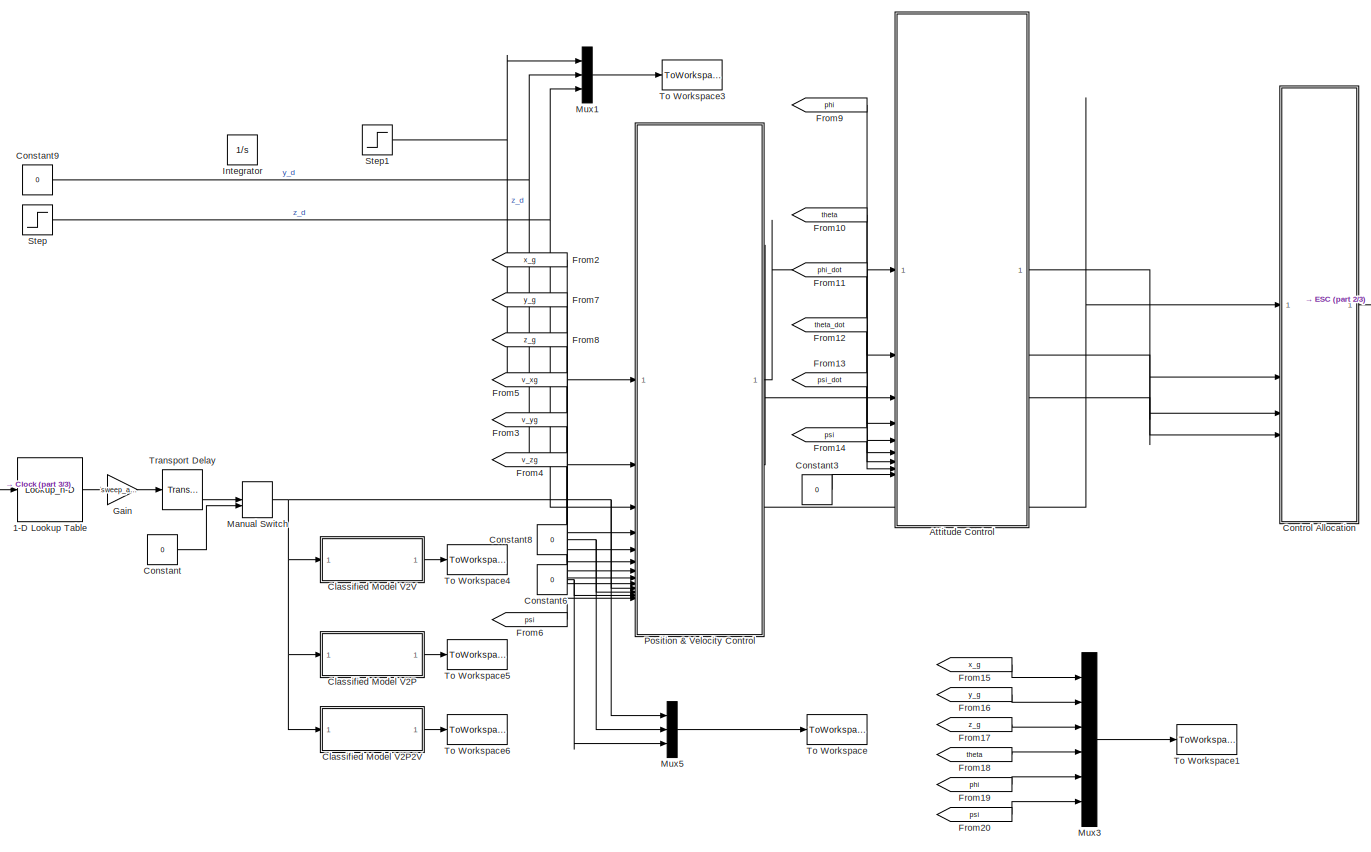
[diagram: root canvas - part 1/3, center side, full height]
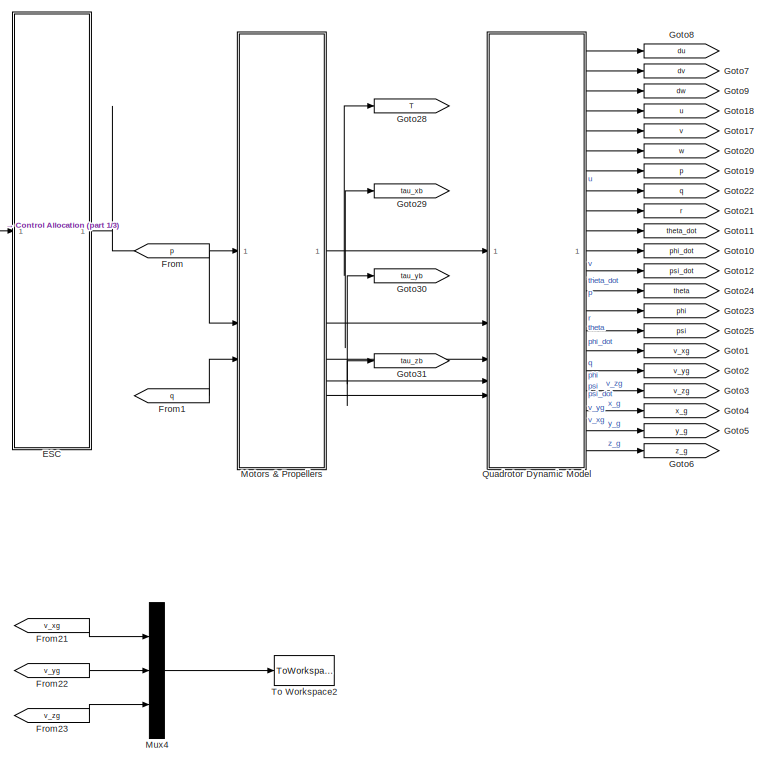
[diagram: root canvas - part 2/3, right side, full height]
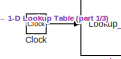
[diagram: root canvas - part 3/3, middle left region]
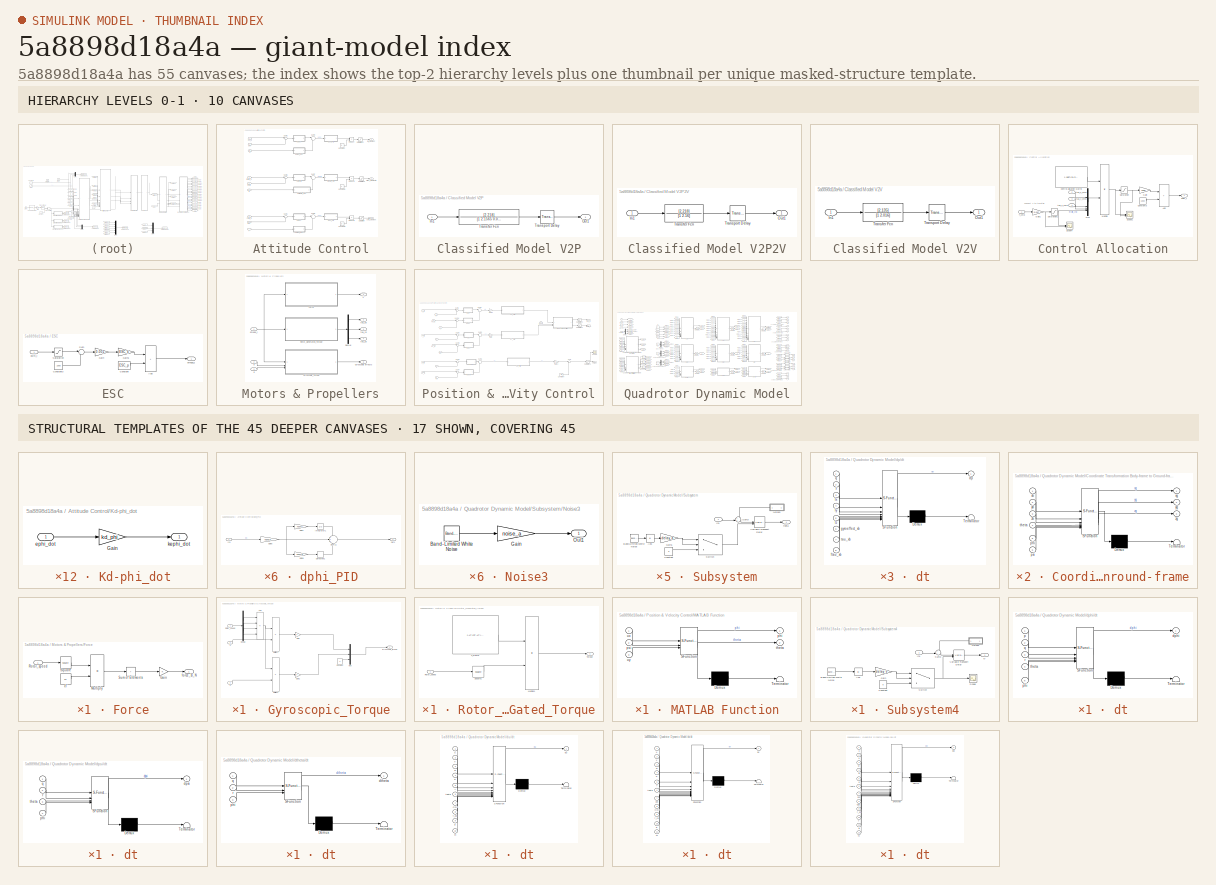
[diagram: thumbnail index - top-2 hierarchy levels (10 canvases) + 17 structural-template representatives of the remaining 45 canvases]
MODEL slx_5a8898d18a4a
KIND model
CONFIG AbsTol = auto
CONFIG EnableMultiTasking = off
CONFIG FixedStep = 0.01
CONFIG InitFcn = initial_conditions_and_parameters;
CONFIG MaxStep = auto
CONFIG MinStep = auto
CONFIG RelTol = 1e-3
CONFIG SampleTimeConstraint = Unconstrained
CONFIG SolverName = ode4
CONFIG StartTime = 0.0
CONFIG StopTime = 120
BLOCK [Lookup_n-D] 1-D Lookup Table
  BreakpointsForDimension1 = t
  InputPortMap = u0
  InternalRulePriority = Speed
  NumberOfTableDimensions = 1
  RndMeth = Simplest
  Table = data
BLOCK [SubSystem] Attitude Control
BLOCK [Constant] Attitude Control/Constant
  Value = Ix
BLOCK [Constant] Attitude Control/Constant1
  Value = Iy
BLOCK [Constant] Attitude Control/Constant2
  Value = Iz
BLOCK [SubSystem] Attitude Control/Kd-phi_dot
BLOCK [Gain] Attitude Control/Kd-phi_dot/Gain
  Gain = kd_phi
BLOCK [Inport] Attitude Control/Kd-phi_dot/ephi_dot
BLOCK [Outport] Attitude Control/Kd-phi_dot/kephi_dot
BLOCK [SubSystem] Attitude Control/Kd-psi_dot
BLOCK [Gain] Attitude Control/Kd-psi_dot/Gain
  Gain = kd_psi
BLOCK [Inport] Attitude Control/Kd-psi_dot/epsi_dot
BLOCK [Outport] Attitude Control/Kd-psi_dot/kepsi_dot
BLOCK [SubSystem] Attitude Control/Kd-theta_dot
BLOCK [Gain] Attitude Control/Kd-theta_dot/Gain
  Gain = kd_theta
BLOCK [Inport] Attitude Control/Kd-theta_dot/etheta_dot
BLOCK [Outport] Attitude Control/Kd-theta_dot/ketheta_dot
BLOCK [SubSystem] Attitude Control/Kp-phi
BLOCK [Gain] Attitude Control/Kp-phi/Gain
  Gain = kp_phi
BLOCK [Inport] Attitude Control/Kp-phi/ephi
BLOCK [Outport] Attitude Control/Kp-phi/kephi
BLOCK [SubSystem] Attitude Control/Kp-psi
BLOCK [Gain] Attitude Control/Kp-psi/Gain
  Gain = kp_psi
BLOCK [Inport] Attitude Control/Kp-psi/epsi
BLOCK [Outport] Attitude Control/Kp-psi/kepsi
BLOCK [SubSystem] Attitude Control/Kp-theta
BLOCK [Gain] Attitude Control/Kp-theta/Gain
  Gain = kp_theta
BLOCK [Inport] Attitude Control/Kp-theta/etheta
BLOCK [Outport] Attitude Control/Kp-theta/ketheta
BLOCK [Product] Attitude Control/Product
  OutMax = [1]
  OutMin = [-1]
BLOCK [Product] Attitude Control/Product1
  OutMax = [1]
  OutMin = [-1]
BLOCK [Product] Attitude Control/Product2
  OutMax = [1]
  OutMin = [-1]
BLOCK [Saturate] Attitude Control/Saturation
  LowerLimit = -tau_z_max
  UpperLimit = tau_z_max
BLOCK [Saturate] Attitude Control/Saturation1
  LowerLimit = -tau_y_max
  UpperLimit = tau_y_max
BLOCK [Saturate] Attitude Control/Saturation2
  LowerLimit = -tau_x_max
  UpperLimit = tau_x_max
BLOCK [Sum] Attitude Control/Sum1
  Inputs = |+-
BLOCK [Sum] Attitude Control/Sum2
  Inputs = |+-
BLOCK [Sum] Attitude Control/Sum4
  Inputs = |+-
BLOCK [Sum] Attitude Control/Sum5
  Inputs = |+-
BLOCK [Sum] Attitude Control/Sum7
  Inputs = |+-
BLOCK [Sum] Attitude Control/Sum9
  Inputs = |+-
BLOCK [SubSystem] Attitude Control/dphi_PID
BLOCK [Derivative] Attitude Control/dphi_PID/Derivative1
  CoefficientInTFapproximation = T_d_angle_rate
BLOCK [Gain] Attitude Control/dphi_PID/Gain6
  Gain = Kdphi_P
BLOCK [Gain] Attitude Control/dphi_PID/Gain7
  Gain = Kdphi_I
BLOCK [Gain] Attitude Control/dphi_PID/Gain8
  Gain = Kdphi_D
BLOCK [Inport] Attitude Control/dphi_PID/In1
BLOCK [Integrator] Attitude Control/dphi_PID/Integrator1
  LimitOutput = on
  LowerSaturationLimit = -0.4
  UpperSaturationLimit = 0.4
BLOCK [Outport] Attitude Control/dphi_PID/Out1
BLOCK [Sum] Attitude Control/dphi_PID/Sum11
  Inputs = +++
BLOCK [SubSystem] Attitude Control/dpsi_PID
BLOCK [Derivative] Attitude Control/dpsi_PID/Derivative1
  CoefficientInTFapproximation = T_d_angle_rate
BLOCK [Gain] Attitude Control/dpsi_PID/Gain6
  Gain = Kdpsi_P
BLOCK [Gain] Attitude Control/dpsi_PID/Gain7
  Gain = Kdpsi_I
BLOCK [Gain] Attitude Control/dpsi_PID/Gain8
  Gain = Kdpsi_D
BLOCK [Inport] Attitude Control/dpsi_PID/In1
BLOCK [Integrator] Attitude Control/dpsi_PID/Integrator1
  LimitOutput = on
  LowerSaturationLimit = -0.4
  UpperSaturationLimit = 0.4
BLOCK [Outport] Attitude Control/dpsi_PID/Out1
BLOCK [Sum] Attitude Control/dpsi_PID/Sum11
  Inputs = +++
BLOCK [SubSystem] Attitude Control/dtheta_PID
BLOCK [Derivative] Attitude Control/dtheta_PID/Derivative1
  CoefficientInTFapproximation = T_d_angle_rate
BLOCK [Gain] Attitude Control/dtheta_PID/Gain6
  Gain = Kdtheta_P
BLOCK [Gain] Attitude Control/dtheta_PID/Gain7
  Gain = Kdtheta_I
BLOCK [Gain] Attitude Control/dtheta_PID/Gain8
  Gain = Kdtheta_D
BLOCK [Inport] Attitude Control/dtheta_PID/In1
BLOCK [Integrator] Attitude Control/dtheta_PID/Integrator1
  LimitOutput = on
  LowerSaturationLimit = -0.4
  UpperSaturationLimit = 0.4
BLOCK [Outport] Attitude Control/dtheta_PID/Out1
BLOCK [Sum] Attitude Control/dtheta_PID/Sum11
  Inputs = +++
BLOCK [Inport] Attitude Control/p
  Port = 5
BLOCK [Inport] Attitude Control/phi
  Port = 2
BLOCK [Inport] Attitude Control/phi_d
BLOCK [Outport] Attitude Control/pitch_momentd
  Port = 2
BLOCK [Inport] Attitude Control/psi
  Port = 8
BLOCK [Inport] Attitude Control/q
  Port = 6
BLOCK [Inport] Attitude Control/r
  Port = 7
BLOCK [Outport] Attitude Control/roll_moment
BLOCK [Inport] Attitude Control/theta
  Port = 4
BLOCK [Inport] Attitude Control/theta_d
  Port = 3
BLOCK [Inport] Attitude Control/yaw_d
  Port = 9
BLOCK [Outport] Attitude Control/yaw_moment
  Port = 3
BLOCK [SubSystem] Classified Model V2P
BLOCK [Inport] Classified Model V2P/In1
BLOCK [Outport] Classified Model V2P/Out1
BLOCK [TransferFcn] Classified Model V2P/Transfer Fcn
  Denominator = [1 2.1565 0.0006694]
  Numerator = [2.218]
BLOCK [TransportDelay] Classified Model V2P/Transport Delay
  DelayTime = 0.06
BLOCK [SubSystem] Classified Model V2P2V
BLOCK [Inport] Classified Model V2P2V/In1
BLOCK [Outport] Classified Model V2P2V/Out1
BLOCK [TransferFcn] Classified Model V2P2V/Transfer Fcn
  Denominator = [1 2.16]
  Numerator = [2.218]
BLOCK [TransportDelay] Classified Model V2P2V/Transport Delay
  DelayTime = 0.06
BLOCK [SubSystem] Classified Model V2V
BLOCK [Inport] Classified Model V2V/In1
BLOCK [Outport] Classified Model V2V/Out1
BLOCK [TransferFcn] Classified Model V2V/Transfer Fcn
  Denominator = [1 2.016]
  Numerator = [2.135]
BLOCK [TransportDelay] Classified Model V2V/Transport Delay
  DelayTime = 0.06
BLOCK [Clock] Clock
BLOCK [Constant] Constant
  Value = 0
BLOCK [Constant] Constant3
  Value = 0
BLOCK [Constant] Constant6
  SampleTime = -1
  Value = 0
BLOCK [Constant] Constant8
  SampleTime = -1
  Value = 0
BLOCK [Constant] Constant9
  SampleTime = -1
  Value = 0
BLOCK [SubSystem] Control Allocation
BLOCK [Sum] Control Allocation/Add
  IconShape = rectangular
BLOCK [Constant] Control Allocation/Constant3
  Value = 1000
BLOCK [Constant] Control Allocation/Control Allocation Matrix
  Value = [-sqrt(2)/2  sqrt(2)/2  1 1; sqrt(2)/2 -sqrt(2)/2  1 1; sqrt(2)/2  sqrt(2)/2 -1 1; -sqrt(2)/2 -sqrt(2)/2 -1 1;]
BLOCK [Gain] Control Allocation/Gain
  Gain = 1000
  OutDataTypeStr = Inherit: Same as input
BLOCK [Gain] Control Allocation/Gain1
  Gain = 0.047
BLOCK [Product] Control Allocation/Multiply
  Multiplication = Matrix(*)
  OutDataTypeStr = Inherit: Same as first input
BLOCK [Mux] Control Allocation/Mux
  DisplayOption = bar
BLOCK [Saturate] Control Allocation/Saturation
  LowerLimit = 0
  UpperLimit = 1
BLOCK [Saturate] Control Allocation/Saturation1
  LowerLimit = 0
  UpperLimit = 1
BLOCK [Scope] Control Allocation/Scope1
  Floating = off
  NumInputPorts = 2
  ScopeSpecificationString = Simulink.scopes.TimeScopeBlockCfg('CurrentConfiguration', extmgr.ConfigurationSet(extmgr.Configuration('Core','General UI',true),extmgr.Configuration('Core','Source UI',true),extmgr.Configuration('Sources','WiredSimulink',true,'DataLoggingVariableName','ScopeData1'),extmgr.Configuration('Visuals','Time Domain',true,'SerializedDisplays',{struct('MinYLimReal','-1.49674','MaxYLimReal','2.87171','YLab...<+1516ch>
BLOCK [Scope] Control Allocation/Scope4
  Floating = off
  NumInputPorts = 2
  ScopeSpecificationString = Simulink.scopes.TimeScopeBlockCfg('CurrentConfiguration', extmgr.ConfigurationSet(extmgr.Configuration('Core','General UI',true),extmgr.Configuration('Core','Source UI',true),extmgr.Configuration('Sources','WiredSimulink',true,'DataLoggingVariableName','ScopeData3'),extmgr.Configuration('Visuals','Time Domain',true,'SerializedDisplays',{struct('MinYLimReal','0.02665','MaxYLimReal','0.60616','YLabe...<+1396ch>
BLOCK [Inport] Control Allocation/T_cmd
BLOCK [Outport] Control Allocation/pwm_i
  VectorParamsAs1DForOutWhenUnconnected = off
BLOCK [Inport] Control Allocation/tau_x_cmd
  Port = 2
BLOCK [Inport] Control Allocation/tau_y_cmd
  Port = 3
BLOCK [Inport] Control Allocation/tau_z_cmd
  Port = 4
BLOCK [SubSystem] ESC
BLOCK [Sum] ESC/Add
  AccumDataTypeStr = double
  IconShape = rectangular
BLOCK [Constant] ESC/Constant
  Value = ESC_p
BLOCK [Constant] ESC/Constant3
  OutDataTypeStr = double
  Value = 1000
BLOCK [Gain] ESC/Gain
  Gain = 0.001
  OutDataTypeStr = Inherit: Same as input
BLOCK [Gain] ESC/Gain1
  Gain = ESC_k
  OutDataTypeStr = Inherit: Same as input
BLOCK [Saturate] ESC/Saturation
  LowerLimit = 1000
  UpperLimit = 2000
BLOCK [Sum] ESC/Sum
  Inputs = |+-
BLOCK [Outport] ESC/omega_i
  VectorParamsAs1DForOutWhenUnconnected = off
BLOCK [Inport] ESC/pwm_i
BLOCK [From] From
  GotoTag = p
BLOCK [From] From1
  GotoTag = q
BLOCK [From] From10
  GotoTag = theta
BLOCK [From] From11
  GotoTag = phi_dot
BLOCK [From] From12
  GotoTag = theta_dot
BLOCK [From] From13
  GotoTag = psi_dot
BLOCK [From] From14
  GotoTag = psi
BLOCK [From] From15
  GotoTag = x_g
BLOCK [From] From16
  GotoTag = y_g
BLOCK [From] From17
  GotoTag = z_g
BLOCK [From] From18
  GotoTag = theta
BLOCK [From] From19
  GotoTag = phi
BLOCK [From] From2
  GotoTag = x_g
BLOCK [From] From20
  GotoTag = psi
BLOCK [From] From21
  GotoTag = v_xg
BLOCK [From] From22
  GotoTag = v_yg
BLOCK [From] From23
  GotoTag = v_zg
BLOCK [From] From3
  GotoTag = v_yg
BLOCK [From] From4
  GotoTag = v_zg
BLOCK [From] From5
  GotoTag = v_xg
BLOCK [From] From6
  GotoTag = psi
BLOCK [From] From7
  GotoTag = y_g
BLOCK [From] From8
  GotoTag = z_g
BLOCK [From] From9
  GotoTag = phi
BLOCK [Gain] Gain
  Gain = sweep_amp
BLOCK [Goto] Goto1
  GotoTag = v_xg
BLOCK [Goto] Goto10
  GotoTag = phi_dot
BLOCK [Goto] Goto11
  GotoTag = theta_dot
BLOCK [Goto] Goto12
  GotoTag = psi_dot
BLOCK [Goto] Goto17
  GotoTag = v
BLOCK [Goto] Goto18
  GotoTag = u
BLOCK [Goto] Goto19
  GotoTag = p
BLOCK [Goto] Goto2
  GotoTag = v_yg
BLOCK [Goto] Goto20
  GotoTag = w
BLOCK [Goto] Goto21
  GotoTag = r
BLOCK [Goto] Goto22
  GotoTag = q
BLOCK [Goto] Goto23
  GotoTag = phi
BLOCK [Goto] Goto24
  GotoTag = theta
BLOCK [Goto] Goto25
  GotoTag = psi
BLOCK [Goto] Goto28
  GotoTag = T
BLOCK [Goto] Goto29
  GotoTag = tau_xb
BLOCK [Goto] Goto3
  GotoTag = v_zg
BLOCK [Goto] Goto30
  GotoTag = tau_yb
BLOCK [Goto] Goto31
  GotoTag = tau_zb
BLOCK [Goto] Goto4
  GotoTag = x_g
BLOCK [Goto] Goto5
  GotoTag = y_g
BLOCK [Goto] Goto6
  GotoTag = z_g
BLOCK [Goto] Goto7
  GotoTag = dv
BLOCK [Goto] Goto8
  GotoTag = du
BLOCK [Goto] Goto9
  GotoTag = dw
BLOCK [Integrator] Integrator
  Commented = on
BLOCK [ManualSwitch] Manual Switch
BLOCK [SubSystem] Motors & Propellers
BLOCK [Demux] Motors & Propellers/Demux
  Outputs = 3
BLOCK [SubSystem] Motors & Propellers/Force
BLOCK [Gain] Motors & Propellers/Force/Gain
  OutDataTypeStr = Inherit: Same as input
BLOCK [Product] Motors & Propellers/Force/Multiply
  OutDataTypeStr = Inherit: Same as first input
BLOCK [Inport] Motors & Propellers/Force/Rotor_speed
BLOCK [Math] Motors & Propellers/Force/Square
  Operator = square
  OutDataTypeStr = double
  SignedPower = on
BLOCK [Sum] Motors & Propellers/Force/Sum of Elements
  AccumDataTypeStr = Inherit: Same as first input
  IconShape = rectangular
  Inputs = +
  OutDataTypeStr = Inherit: Same as first input
BLOCK [Constant] Motors & Propellers/Force/cT
  Value = hT
BLOCK [Outport] Motors & Propellers/Force/force_B_N
  VectorParamsAs1DForOutWhenUnconnected = off
BLOCK [Outport] Motors & Propellers/Gyroscopic effects
  Port = 5
  VectorParamsAs1DForOutWhenUnconnected = off
BLOCK [SubSystem] Motors & Propellers/Gyroscopic_Torque
BLOCK [Sum] Motors & Propellers/Gyroscopic_Torque/Add
  IconShape = rectangular
  Inputs = --++
BLOCK [Constant] Motors & Propellers/Gyroscopic_Torque/Constant
  Value = 0
BLOCK [Demux] Motors & Propellers/Gyroscopic_Torque/Demux
BLOCK [Gain] Motors & Propellers/Gyroscopic_Torque/Gain
  Gain = -Ir
BLOCK [Gain] Motors & Propellers/Gyroscopic_Torque/Gain1
  Gain = Ir
BLOCK [Product] Motors & Propellers/Gyroscopic_Torque/Multiply1
BLOCK [Product] Motors & Propellers/Gyroscopic_Torque/Multiply2
BLOCK [Mux] Motors & Propellers/Gyroscopic_Torque/Mux
  DisplayOption = bar
  Inputs = 3
BLOCK [Inport] Motors & Propellers/Gyroscopic_Torque/Rotor_speed
BLOCK [Outport] Motors & Propellers/Gyroscopic_Torque/gyroscopic_torque
  VectorParamsAs1DForOutWhenUnconnected = off
BLOCK [Inport] Motors & Propellers/Gyroscopic_Torque/p
  Port = 2
BLOCK [Inport] Motors & Propellers/Gyroscopic_Torque/q
  Port = 3
BLOCK [SubSystem] Motors & Propellers/Rotor_Generated_Torque
BLOCK [Product] Motors & Propellers/Rotor_Generated_Torque/Multiply1
  Multiplication = Matrix(*)
BLOCK [Inport] Motors & Propellers/Rotor_Generated_Torque/Rotor_speed
BLOCK [Math] Motors & Propellers/Rotor_Generated_Torque/Square1
  Operator = square
  SignedPower = on
BLOCK [Outport] Motors & Propellers/Rotor_Generated_Torque/Torque
  VectorParamsAs1DForOutWhenUnconnected = off
BLOCK [Constant] Motors & Propellers/Rotor_Generated_Torque/X_Frame
  OutDataTypeStr = double
  Value = [-LT*hT,LT*hT,LT*hT,-LT*hT;LT*hT,-LT*hT,LT*hT,-LT*hT;hM,hM,-hM,-hM]
BLOCK [Outport] Motors & Propellers/T
  VectorParamsAs1DForOutWhenUnconnected = off
BLOCK [Inport] Motors & Propellers/omega_i
BLOCK [Inport] Motors & Propellers/p
  Port = 2
BLOCK [Inport] Motors & Propellers/q
  Port = 3
BLOCK [Outport] Motors & Propellers/tau_xb
  Port = 2
  VectorParamsAs1DForOutWhenUnconnected = off
BLOCK [Outport] Motors & Propellers/tau_yb
  Port = 3
  VectorParamsAs1DForOutWhenUnconnected = off
BLOCK [Outport] Motors & Propellers/tau_zb
  Port = 4
  VectorParamsAs1DForOutWhenUnconnected = off
BLOCK [Mux] Mux1
  DisplayOption = bar
  Inputs = 3
BLOCK [Mux] Mux3
  DisplayOption = bar
  Inputs = 6
BLOCK [Mux] Mux4
  DisplayOption = bar
  Inputs = 3
BLOCK [Mux] Mux5
  DisplayOption = bar
  Inputs = 3
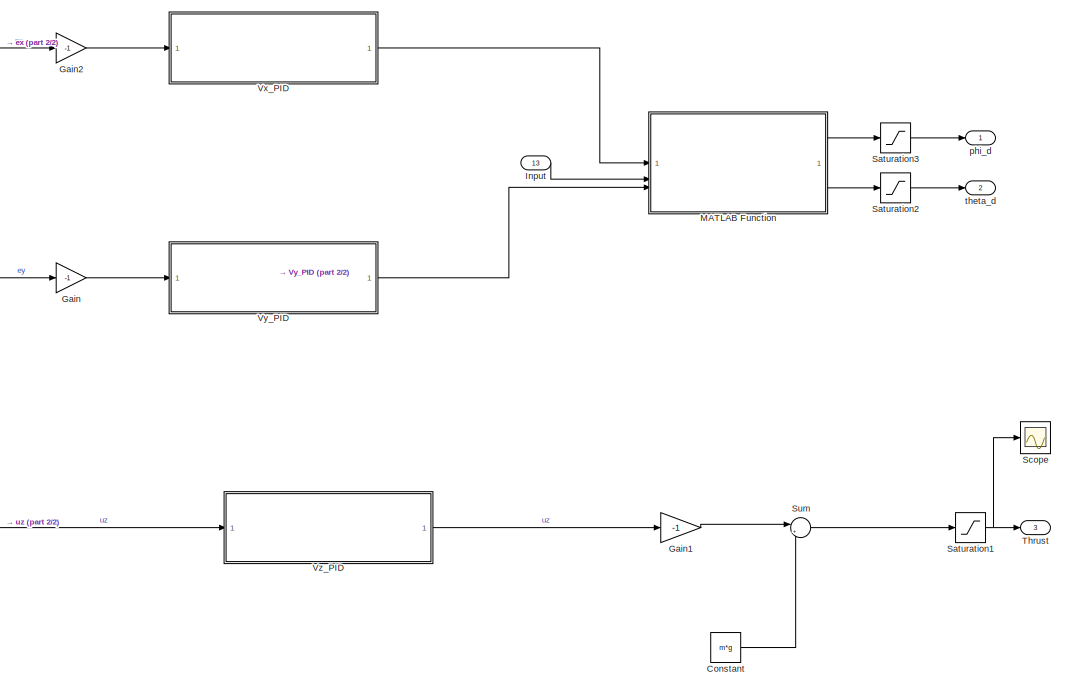
[diagram: Position & Velocity Control - part 1/2, right side, full height]
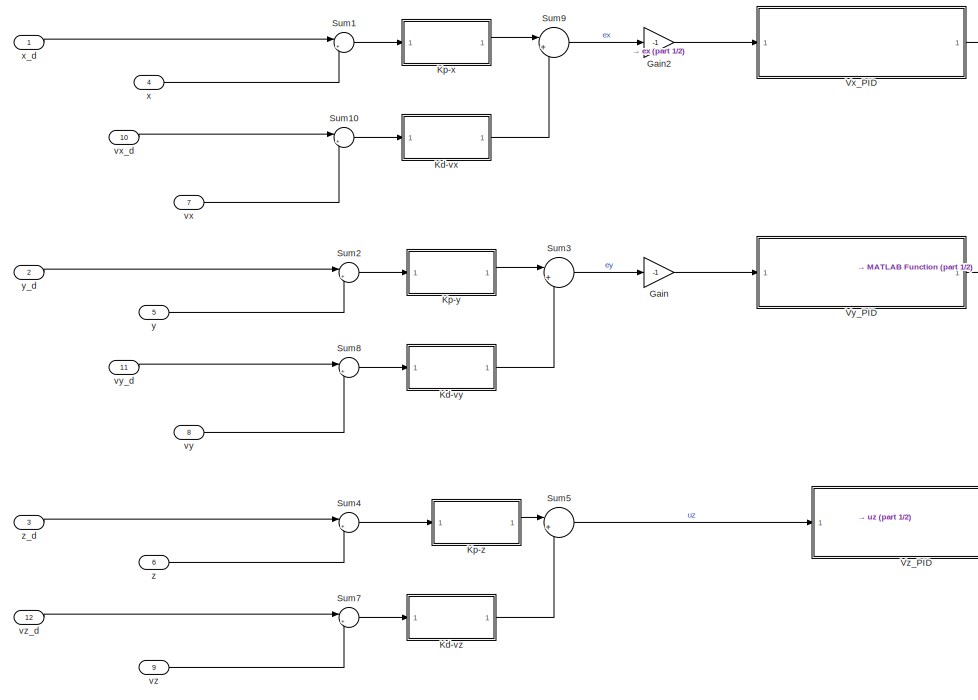
[diagram: Position & Velocity Control - part 2/2, left side, full height]
BLOCK [SubSystem] Position & Velocity Control
BLOCK [Constant] Position & Velocity Control/Constant
  Value = m*g
BLOCK [Gain] Position & Velocity Control/Gain
  Gain = -1
BLOCK [Gain] Position & Velocity Control/Gain1
  Gain = -1
BLOCK [Gain] Position & Velocity Control/Gain2
  Gain = -1
BLOCK [Inport] Position & Velocity Control/Input
  Port = 13
BLOCK [SubSystem] Position & Velocity Control/Kd-vx
BLOCK [Gain] Position & Velocity Control/Kd-vx/Gain
  Gain = kd_x
BLOCK [Inport] Position & Velocity Control/Kd-vx/evx
BLOCK [Outport] Position & Velocity Control/Kd-vx/kevx
BLOCK [SubSystem] Position & Velocity Control/Kd-vy
BLOCK [Gain] Position & Velocity Control/Kd-vy/Gain
  Gain = kd_y
BLOCK [Inport] Position & Velocity Control/Kd-vy/evy
BLOCK [Outport] Position & Velocity Control/Kd-vy/kevy
BLOCK [SubSystem] Position & Velocity Control/Kd-vz
BLOCK [Gain] Position & Velocity Control/Kd-vz/Gain
  Gain = kd_z
BLOCK [Inport] Position & Velocity Control/Kd-vz/evz
BLOCK [Outport] Position & Velocity Control/Kd-vz/kevz
BLOCK [SubSystem] Position & Velocity Control/Kp-x
BLOCK [Gain] Position & Velocity Control/Kp-x/Gain
  Gain = kp_x
BLOCK [Inport] Position & Velocity Control/Kp-x/ex
BLOCK [Outport] Position & Velocity Control/Kp-x/kex
BLOCK [SubSystem] Position & Velocity Control/Kp-y
BLOCK [Gain] Position & Velocity Control/Kp-y/Gain
  Gain = kp_y
BLOCK [Inport] Position & Velocity Control/Kp-y/ey
BLOCK [Outport] Position & Velocity Control/Kp-y/key
BLOCK [SubSystem] Position & Velocity Control/Kp-z
BLOCK [Gain] Position & Velocity Control/Kp-z/Gain
  Gain = kp_z
BLOCK [Inport] Position & Velocity Control/Kp-z/ez
BLOCK [Outport] Position & Velocity Control/Kp-z/kez
BLOCK [SubSystem] Position & Velocity Control/MATLAB Function
  ErrorFcn = Stateflow.Translate.translate
  PermitHierarchicalResolution = ExplicitOnly
  SFBlockType = MATLAB Function
  TreatAsAtomicUnit = on
BLOCK [Demux] Position & Velocity Control/MATLAB Function/ Demux 
  Outputs = 1
BLOCK [S-Function] Position & Velocity Control/MATLAB Function/ SFunction 
  EnableBusSupport = on
  FunctionName = sf_sfun
  PortCounts = [3 3]
  SFcnIsStateOwnerBlock = off
  SFunctionDeploymentMode = off
  Tag = Stateflow S-Function 3
BLOCK [Terminator] Position & Velocity Control/MATLAB Function/ Terminator 
BLOCK [Outport] Position & Velocity Control/MATLAB Function/phi
BLOCK [Inport] Position & Velocity Control/MATLAB Function/psi
  Port = 2
BLOCK [Outport] Position & Velocity Control/MATLAB Function/theta
  Port = 2
BLOCK [Inport] Position & Velocity Control/MATLAB Function/ux
BLOCK [Inport] Position & Velocity Control/MATLAB Function/uy
  Port = 3
BLOCK [Saturate] Position & Velocity Control/Saturation1
  LowerLimit = -T_max
  UpperLimit = 15
BLOCK [Saturate] Position & Velocity Control/Saturation2
  LowerLimit = -ang_max
  UpperLimit = ang_max
BLOCK [Saturate] Position & Velocity Control/Saturation3
  LinearizeAsGain = off
  LowerLimit = -ang_max
  UpperLimit = ang_max
BLOCK [Scope] Position & Velocity Control/Scope
  Floating = off
  NumInputPorts = 1
  ScopeSpecificationString = Simulink.scopes.TimeScopeBlockCfg('CurrentConfiguration', extmgr.ConfigurationSet(extmgr.Configuration('Core','General UI',true),extmgr.Configuration('Core','Source UI',true),extmgr.Configuration('Sources','WiredSimulink',true,'DataLoggingVariableName','ScopeData1'),extmgr.Configuration('Visuals','Time Domain',true,'SerializedDisplays',{struct('MinYLimReal','-20.36289','MaxYLimReal','15.37792','YL...<+1376ch>
BLOCK [Sum] Position & Velocity Control/Sum
  Inputs = |++
BLOCK [Sum] Position & Velocity Control/Sum1
  Inputs = |+-
BLOCK [Sum] Position & Velocity Control/Sum10
  Inputs = |+-
BLOCK [Sum] Position & Velocity Control/Sum2
  Inputs = |+-
BLOCK [Sum] Position & Velocity Control/Sum3
  Inputs = |++
BLOCK [Sum] Position & Velocity Control/Sum4
  Inputs = |+-
BLOCK [Sum] Position & Velocity Control/Sum5
  Inputs = |++
BLOCK [Sum] Position & Velocity Control/Sum7
  Inputs = |+-
BLOCK [Sum] Position & Velocity Control/Sum8
  Inputs = |+-
BLOCK [Sum] Position & Velocity Control/Sum9
  Inputs = |++
BLOCK [Outport] Position & Velocity Control/Thrust
  OutMax = [0]
  OutMin = [-30]
  Port = 3
BLOCK [SubSystem] Position & Velocity Control/Vx_PID
BLOCK [Derivative] Position & Velocity Control/Vx_PID/Derivative
  CoefficientInTFapproximation = T_d_v
BLOCK [Gain] Position & Velocity Control/Vx_PID/Gain6
  Gain = Kvx_P
BLOCK [Gain] Position & Velocity Control/Vx_PID/Gain7
  Gain = Kvx_I
BLOCK [Gain] Position & Velocity Control/Vx_PID/Gain8
  Gain = Kvx_D
BLOCK [Inport] Position & Velocity Control/Vx_PID/In1
BLOCK [Integrator] Position & Velocity Control/Vx_PID/Integrator1
  LimitOutput = on
  LowerSaturationLimit = -0.4
  UpperSaturationLimit = 0.4
BLOCK [Sum] Position & Velocity Control/Vx_PID/Sum11
  Inputs = +++
BLOCK [Outport] Position & Velocity Control/Vx_PID/ux
BLOCK [SubSystem] Position & Velocity Control/Vy_PID
BLOCK [Derivative] Position & Velocity Control/Vy_PID/Derivative
  CoefficientInTFapproximation = T_d_v
BLOCK [Gain] Position & Velocity Control/Vy_PID/Gain6
  Gain = Kvy_P
BLOCK [Gain] Position & Velocity Control/Vy_PID/Gain7
  Gain = Kvy_I
BLOCK [Gain] Position & Velocity Control/Vy_PID/Gain8
  Gain = Kvy_D
BLOCK [Inport] Position & Velocity Control/Vy_PID/In1
BLOCK [Integrator] Position & Velocity Control/Vy_PID/Integrator1
  LimitOutput = on
  LowerSaturationLimit = -0.4
  UpperSaturationLimit = 0.4
BLOCK [Sum] Position & Velocity Control/Vy_PID/Sum11
  Inputs = +++
BLOCK [Outport] Position & Velocity Control/Vy_PID/ux
BLOCK [SubSystem] Position & Velocity Control/Vz_PID
BLOCK [Derivative] Position & Velocity Control/Vz_PID/Derivative
  CoefficientInTFapproximation = T_d_v
BLOCK [Gain] Position & Velocity Control/Vz_PID/Gain6
  Gain = Kvz_P
BLOCK [Gain] Position & Velocity Control/Vz_PID/Gain7
  Gain = Kvz_I
BLOCK [Gain] Position & Velocity Control/Vz_PID/Gain8
  Gain = Kvz_D
BLOCK [Inport] Position & Velocity Control/Vz_PID/In1
BLOCK [Integrator] Position & Velocity Control/Vz_PID/Integrator1
  LimitOutput = on
  LowerSaturationLimit = -0.4
  UpperSaturationLimit = 0.4
BLOCK [Sum] Position & Velocity Control/Vz_PID/Sum11
  Inputs = +++
BLOCK [Outport] Position & Velocity Control/Vz_PID/ux
BLOCK [Outport] Position & Velocity Control/phi_d
BLOCK [Outport] Position & Velocity Control/theta_d
  Port = 2
BLOCK [Inport] Position & Velocity Control/vx
  IconDisplay = Signal name
  Port = 7
BLOCK [Inport] Position & Velocity Control/vx_d
  IconDisplay = Signal name
  Port = 10
BLOCK [Inport] Position & Velocity Control/vy
  IconDisplay = Signal name
  Port = 8
BLOCK [Inport] Position & Velocity Control/vy_d
  IconDisplay = Signal name
  Port = 11
BLOCK [Inport] Position & Velocity Control/vz
  IconDisplay = Signal name
  Port = 9
BLOCK [Inport] Position & Velocity Control/vz_d
  IconDisplay = Signal name
  Port = 12
BLOCK [Inport] Position & Velocity Control/x
  IconDisplay = Signal name
  Port = 4
BLOCK [Inport] Position & Velocity Control/x_d
  IconDisplay = Signal name
BLOCK [Inport] Position & Velocity Control/y
  IconDisplay = Signal name
  Port = 5
BLOCK [Inport] Position & Velocity Control/y_d
  IconDisplay = Signal name
  Port = 2
BLOCK [Inport] Position & Velocity Control/z
  IconDisplay = Signal name
  Port = 6
BLOCK [Inport] Position & Velocity Control/z_d
  IconDisplay = Signal name
  Port = 3
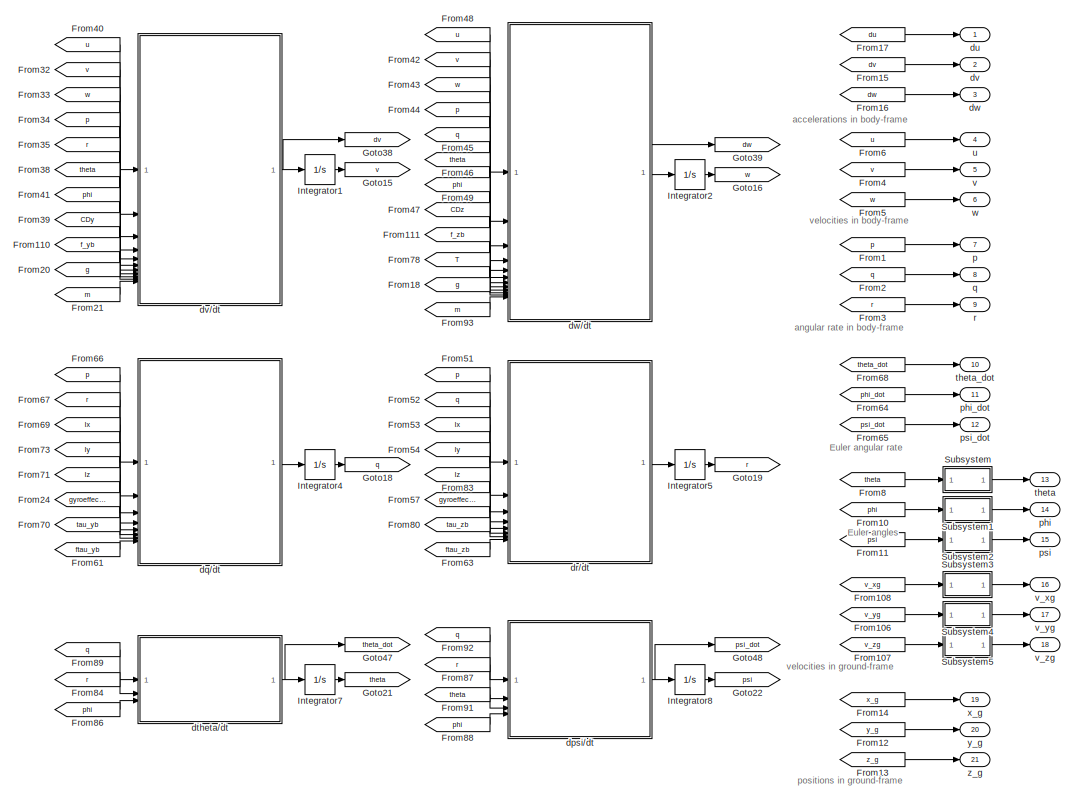
[diagram: Quadrotor Dynamic Model - part 1/2, right side, full height]
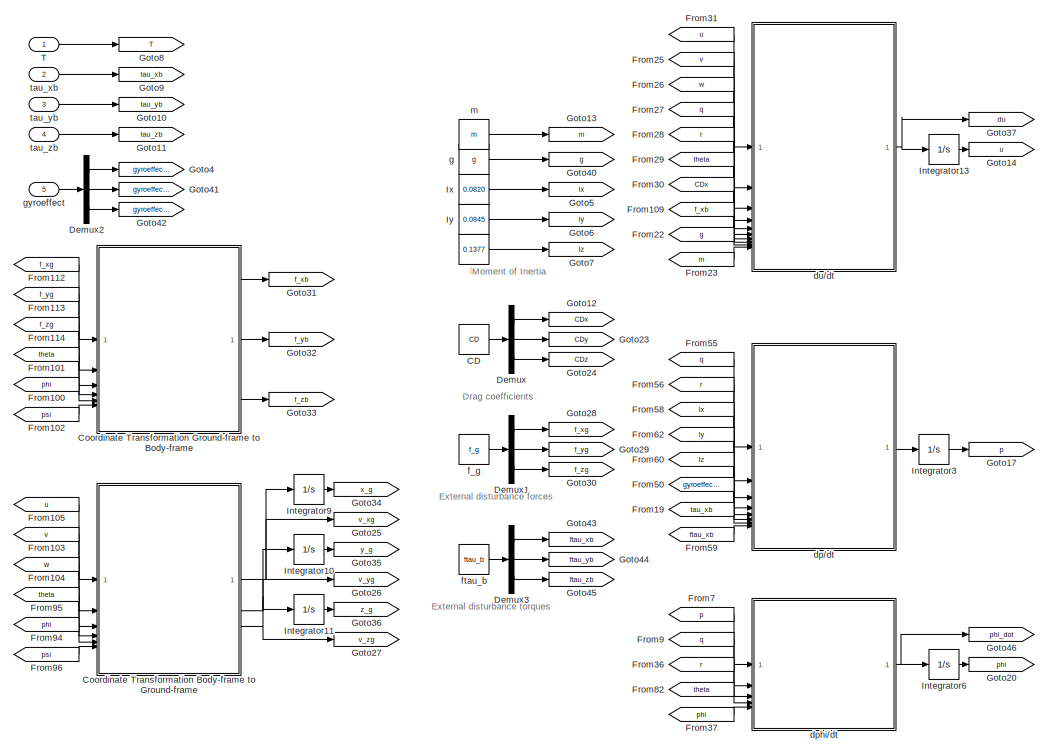
[diagram: Quadrotor Dynamic Model - part 2/2, left side, full height]
BLOCK [SubSystem] Quadrotor Dynamic Model
BLOCK [Constant] Quadrotor Dynamic Model/CD
  Value = CD
BLOCK [SubSystem] Quadrotor Dynamic Model/Coordinate Transformation Body-frame to Ground-frame
  ErrorFcn = Stateflow.Translate.translate
  PermitHierarchicalResolution = ExplicitOnly
  SFBlockType = MATLAB Function
  TreatAsAtomicUnit = on
BLOCK [Demux] Quadrotor Dynamic Model/Coordinate Transformation Body-frame to Ground-frame/ Demux 
  Outputs = 1
BLOCK [S-Function] Quadrotor Dynamic Model/Coordinate Transformation Body-frame to Ground-frame/ SFunction 
  EnableBusSupport = on
  FunctionName = sf_sfun
  PortCounts = [6 4]
  SFcnIsStateOwnerBlock = off
  SFunctionDeploymentMode = off
  Tag = Stateflow S-Function 2
BLOCK [Terminator] Quadrotor Dynamic Model/Coordinate Transformation Body-frame to Ground-frame/ Terminator 
BLOCK [Inport] Quadrotor Dynamic Model/Coordinate Transformation Body-frame to Ground-frame/phi
  Port = 5
BLOCK [Inport] Quadrotor Dynamic Model/Coordinate Transformation Body-frame to Ground-frame/psi
  Port = 6
BLOCK [Inport] Quadrotor Dynamic Model/Coordinate Transformation Body-frame to Ground-frame/theta
  Port = 4
BLOCK [Inport] Quadrotor Dynamic Model/Coordinate Transformation Body-frame to Ground-frame/xb
BLOCK [Outport] Quadrotor Dynamic Model/Coordinate Transformation Body-frame to Ground-frame/xg
  VectorParamsAs1DForOutWhenUnconnected = off
BLOCK [Inport] Quadrotor Dynamic Model/Coordinate Transformation Body-frame to Ground-frame/yb
  Port = 2
BLOCK [Outport] Quadrotor Dynamic Model/Coordinate Transformation Body-frame to Ground-frame/yg
  Port = 2
  VectorParamsAs1DForOutWhenUnconnected = off
BLOCK [Inport] Quadrotor Dynamic Model/Coordinate Transformation Body-frame to Ground-frame/zb
  Port = 3
BLOCK [Outport] Quadrotor Dynamic Model/Coordinate Transformation Body-frame to Ground-frame/zg
  Port = 3
  VectorParamsAs1DForOutWhenUnconnected = off
BLOCK [SubSystem] Quadrotor Dynamic Model/Coordinate Transformation Ground-frame to Body-frame
  ErrorFcn = Stateflow.Translate.translate
  PermitHierarchicalResolution = ExplicitOnly
  SFBlockType = MATLAB Function
  TreatAsAtomicUnit = on
BLOCK [Demux] Quadrotor Dynamic Model/Coordinate Transformation Ground-frame to Body-frame/ Demux 
  Outputs = 1
BLOCK [S-Function] Quadrotor Dynamic Model/Coordinate Transformation Ground-frame to Body-frame/ SFunction 
  EnableBusSupport = on
  FunctionName = sf_sfun
  PortCounts = [6 4]
  SFcnIsStateOwnerBlock = off
  SFunctionDeploymentMode = off
  Tag = Stateflow S-Function 1
BLOCK [Terminator] Quadrotor Dynamic Model/Coordinate Transformation Ground-frame to Body-frame/ Terminator 
BLOCK [Inport] Quadrotor Dynamic Model/Coordinate Transformation Ground-frame to Body-frame/phi
  Port = 5
BLOCK [Inport] Quadrotor Dynamic Model/Coordinate Transformation Ground-frame to Body-frame/psi
  Port = 6
BLOCK [Inport] Quadrotor Dynamic Model/Coordinate Transformation Ground-frame to Body-frame/theta
  Port = 4
BLOCK [Outport] Quadrotor Dynamic Model/Coordinate Transformation Ground-frame to Body-frame/xb
  VectorParamsAs1DForOutWhenUnconnected = off
BLOCK [Inport] Quadrotor Dynamic Model/Coordinate Transformation Ground-frame to Body-frame/xg
BLOCK [Outport] Quadrotor Dynamic Model/Coordinate Transformation Ground-frame to Body-frame/yb
  Port = 2
  VectorParamsAs1DForOutWhenUnconnected = off
BLOCK [Inport] Quadrotor Dynamic Model/Coordinate Transformation Ground-frame to Body-frame/yg
  Port = 2
BLOCK [Outport] Quadrotor Dynamic Model/Coordinate Transformation Ground-frame to Body-frame/zb
  Port = 3
  VectorParamsAs1DForOutWhenUnconnected = off
BLOCK [Inport] Quadrotor Dynamic Model/Coordinate Transformation Ground-frame to Body-frame/zg
  Port = 3
BLOCK [Demux] Quadrotor Dynamic Model/Demux
  Outputs = 3
BLOCK [Demux] Quadrotor Dynamic Model/Demux1
  Outputs = 3
BLOCK [Demux] Quadrotor Dynamic Model/Demux2
  Outputs = 3
BLOCK [Demux] Quadrotor Dynamic Model/Demux3
  Outputs = 3
BLOCK [From] Quadrotor Dynamic Model/From1
  GotoTag = p
BLOCK [From] Quadrotor Dynamic Model/From10
  GotoTag = phi
BLOCK [From] Quadrotor Dynamic Model/From100
  GotoTag = phi
BLOCK [From] Quadrotor Dynamic Model/From101
  GotoTag = theta
BLOCK [From] Quadrotor Dynamic Model/From102
  GotoTag = psi
BLOCK [From] Quadrotor Dynamic Model/From103
  GotoTag = v
BLOCK [From] Quadrotor Dynamic Model/From104
  GotoTag = w
BLOCK [From] Quadrotor Dynamic Model/From105
  GotoTag = u
BLOCK [From] Quadrotor Dynamic Model/From106
  GotoTag = v_yg
BLOCK [From] Quadrotor Dynamic Model/From107
  GotoTag = v_zg
BLOCK [From] Quadrotor Dynamic Model/From108
  GotoTag = v_xg
BLOCK [From] Quadrotor Dynamic Model/From109
  GotoTag = f_xb
BLOCK [From] Quadrotor Dynamic Model/From11
  GotoTag = psi
BLOCK [From] Quadrotor Dynamic Model/From110
  GotoTag = f_yb
BLOCK [From] Quadrotor Dynamic Model/From111
  GotoTag = f_zb
BLOCK [From] Quadrotor Dynamic Model/From112
  GotoTag = f_xg
BLOCK [From] Quadrotor Dynamic Model/From113
  GotoTag = f_yg
BLOCK [From] Quadrotor Dynamic Model/From114
  GotoTag = f_zg
BLOCK [From] Quadrotor Dynamic Model/From12
  GotoTag = y_g
BLOCK [From] Quadrotor Dynamic Model/From13
  GotoTag = z_g
BLOCK [From] Quadrotor Dynamic Model/From14
  GotoTag = x_g
BLOCK [From] Quadrotor Dynamic Model/From15
  GotoTag = dv
BLOCK [From] Quadrotor Dynamic Model/From16
  GotoTag = dw
BLOCK [From] Quadrotor Dynamic Model/From17
  GotoTag = du
BLOCK [From] Quadrotor Dynamic Model/From18
  GotoTag = g
BLOCK [From] Quadrotor Dynamic Model/From19
  GotoTag = tau_xb
BLOCK [From] Quadrotor Dynamic Model/From2
  GotoTag = q
BLOCK [From] Quadrotor Dynamic Model/From20
  GotoTag = g
BLOCK [From] Quadrotor Dynamic Model/From21
  GotoTag = m
BLOCK [From] Quadrotor Dynamic Model/From22
  GotoTag = g
BLOCK [From] Quadrotor Dynamic Model/From23
  GotoTag = m
BLOCK [From] Quadrotor Dynamic Model/From24
  GotoTag = gyroeffect_yb
BLOCK [From] Quadrotor Dynamic Model/From25
  GotoTag = v
BLOCK [From] Quadrotor Dynamic Model/From26
  GotoTag = w
BLOCK [From] Quadrotor Dynamic Model/From27
  GotoTag = q
BLOCK [From] Quadrotor Dynamic Model/From28
  GotoTag = r
BLOCK [From] Quadrotor Dynamic Model/From29
  GotoTag = theta
BLOCK [From] Quadrotor Dynamic Model/From3
  GotoTag = r
BLOCK [From] Quadrotor Dynamic Model/From30
  GotoTag = CDx
BLOCK [From] Quadrotor Dynamic Model/From31
  GotoTag = u
BLOCK [From] Quadrotor Dynamic Model/From32
  GotoTag = v
BLOCK [From] Quadrotor Dynamic Model/From33
  GotoTag = w
BLOCK [From] Quadrotor Dynamic Model/From34
  GotoTag = p
BLOCK [From] Quadrotor Dynamic Model/From35
  GotoTag = r
BLOCK [From] Quadrotor Dynamic Model/From36
  GotoTag = r
BLOCK [From] Quadrotor Dynamic Model/From37
  GotoTag = phi
BLOCK [From] Quadrotor Dynamic Model/From38
  GotoTag = theta
BLOCK [From] Quadrotor Dynamic Model/From39
  GotoTag = CDy
BLOCK [From] Quadrotor Dynamic Model/From4
  GotoTag = v
BLOCK [From] Quadrotor Dynamic Model/From40
  GotoTag = u
BLOCK [From] Quadrotor Dynamic Model/From41
  GotoTag = phi
BLOCK [From] Quadrotor Dynamic Model/From42
  GotoTag = v
BLOCK [From] Quadrotor Dynamic Model/From43
  GotoTag = w
BLOCK [From] Quadrotor Dynamic Model/From44
  GotoTag = p
BLOCK [From] Quadrotor Dynamic Model/From45
  GotoTag = q
BLOCK [From] Quadrotor Dynamic Model/From46
  GotoTag = theta
BLOCK [From] Quadrotor Dynamic Model/From47
  GotoTag = CDz
BLOCK [From] Quadrotor Dynamic Model/From48
  GotoTag = u
BLOCK [From] Quadrotor Dynamic Model/From49
  GotoTag = phi
BLOCK [From] Quadrotor Dynamic Model/From5
  GotoTag = w
BLOCK [From] Quadrotor Dynamic Model/From50
  GotoTag = gyroeffect_xb
BLOCK [From] Quadrotor Dynamic Model/From51
  GotoTag = p
BLOCK [From] Quadrotor Dynamic Model/From52
  GotoTag = q
BLOCK [From] Quadrotor Dynamic Model/From53
  GotoTag = Ix
BLOCK [From] Quadrotor Dynamic Model/From54
  GotoTag = Iy
BLOCK [From] Quadrotor Dynamic Model/From55
  GotoTag = q
BLOCK [From] Quadrotor Dynamic Model/From56
  GotoTag = r
BLOCK [From] Quadrotor Dynamic Model/From57
  GotoTag = gyroeffect_zb
BLOCK [From] Quadrotor Dynamic Model/From58
  GotoTag = Ix
BLOCK [From] Quadrotor Dynamic Model/From59
  GotoTag = ftau_xb
BLOCK [From] Quadrotor Dynamic Model/From6
  GotoTag = u
BLOCK [From] Quadrotor Dynamic Model/From60
  GotoTag = Iz
BLOCK [From] Quadrotor Dynamic Model/From61
  GotoTag = ftau_yb
BLOCK [From] Quadrotor Dynamic Model/From62
  GotoTag = Iy
BLOCK [From] Quadrotor Dynamic Model/From63
  GotoTag = ftau_zb
BLOCK [From] Quadrotor Dynamic Model/From64
  GotoTag = phi_dot
BLOCK [From] Quadrotor Dynamic Model/From65
  GotoTag = psi_dot
BLOCK [From] Quadrotor Dynamic Model/From66
  GotoTag = p
BLOCK [From] Quadrotor Dynamic Model/From67
  GotoTag = r
BLOCK [From] Quadrotor Dynamic Model/From68
  GotoTag = theta_dot
BLOCK [From] Quadrotor Dynamic Model/From69
  GotoTag = Ix
BLOCK [From] Quadrotor Dynamic Model/From7
  GotoTag = p
BLOCK [From] Quadrotor Dynamic Model/From70
  GotoTag = tau_yb
BLOCK [From] Quadrotor Dynamic Model/From71
  GotoTag = Iz
BLOCK [From] Quadrotor Dynamic Model/From73
  GotoTag = Iy
BLOCK [From] Quadrotor Dynamic Model/From78
  GotoTag = T
BLOCK [From] Quadrotor Dynamic Model/From8
  GotoTag = theta
BLOCK [From] Quadrotor Dynamic Model/From80
  GotoTag = tau_zb
BLOCK [From] Quadrotor Dynamic Model/From82
  GotoTag = theta
BLOCK [From] Quadrotor Dynamic Model/From83
  GotoTag = Iz
BLOCK [From] Quadrotor Dynamic Model/From84
  GotoTag = r
BLOCK [From] Quadrotor Dynamic Model/From86
  GotoTag = phi
BLOCK [From] Quadrotor Dynamic Model/From87
  GotoTag = r
BLOCK [From] Quadrotor Dynamic Model/From88
  GotoTag = phi
BLOCK [From] Quadrotor Dynamic Model/From89
  GotoTag = q
BLOCK [From] Quadrotor Dynamic Model/From9
  GotoTag = q
BLOCK [From] Quadrotor Dynamic Model/From91
  GotoTag = theta
BLOCK [From] Quadrotor Dynamic Model/From92
  GotoTag = q
BLOCK [From] Quadrotor Dynamic Model/From93
  GotoTag = m
BLOCK [From] Quadrotor Dynamic Model/From94
  GotoTag = phi
BLOCK [From] Quadrotor Dynamic Model/From95
  GotoTag = theta
BLOCK [From] Quadrotor Dynamic Model/From96
  GotoTag = psi
BLOCK [Goto] Quadrotor Dynamic Model/Goto10
  GotoTag = tau_yb
BLOCK [Goto] Quadrotor Dynamic Model/Goto11
  GotoTag = tau_zb
BLOCK [Goto] Quadrotor Dynamic Model/Goto12
  GotoTag = CDx
BLOCK [Goto] Quadrotor Dynamic Model/Goto13
  GotoTag = m
BLOCK [Goto] Quadrotor Dynamic Model/Goto14
  GotoTag = u
BLOCK [Goto] Quadrotor Dynamic Model/Goto15
  GotoTag = v
BLOCK [Goto] Quadrotor Dynamic Model/Goto16
  GotoTag = w
BLOCK [Goto] Quadrotor Dynamic Model/Goto17
  GotoTag = p
BLOCK [Goto] Quadrotor Dynamic Model/Goto18
  GotoTag = q
BLOCK [Goto] Quadrotor Dynamic Model/Goto19
  GotoTag = r
BLOCK [Goto] Quadrotor Dynamic Model/Goto20
  GotoTag = phi
BLOCK [Goto] Quadrotor Dynamic Model/Goto21
  GotoTag = theta
BLOCK [Goto] Quadrotor Dynamic Model/Goto22
  GotoTag = psi
BLOCK [Goto] Quadrotor Dynamic Model/Goto23
  GotoTag = CDy
BLOCK [Goto] Quadrotor Dynamic Model/Goto24
  GotoTag = CDz
BLOCK [Goto] Quadrotor Dynamic Model/Goto25
  GotoTag = v_xg
BLOCK [Goto] Quadrotor Dynamic Model/Goto26
  GotoTag = v_yg
BLOCK [Goto] Quadrotor Dynamic Model/Goto27
  GotoTag = v_zg
BLOCK [Goto] Quadrotor Dynamic Model/Goto28
  GotoTag = f_xg
BLOCK [Goto] Quadrotor Dynamic Model/Goto29
  GotoTag = f_yg
BLOCK [Goto] Quadrotor Dynamic Model/Goto30
  GotoTag = f_zg
BLOCK [Goto] Quadrotor Dynamic Model/Goto31
  GotoTag = f_xb
BLOCK [Goto] Quadrotor Dynamic Model/Goto32
  GotoTag = f_yb
BLOCK [Goto] Quadrotor Dynamic Model/Goto33
  GotoTag = f_zb
BLOCK [Goto] Quadrotor Dynamic Model/Goto34
  GotoTag = x_g
BLOCK [Goto] Quadrotor Dynamic Model/Goto35
  GotoTag = y_g
BLOCK [Goto] Quadrotor Dynamic Model/Goto36
  GotoTag = z_g
BLOCK [Goto] Quadrotor Dynamic Model/Goto37
  GotoTag = du
BLOCK [Goto] Quadrotor Dynamic Model/Goto38
  GotoTag = dv
BLOCK [Goto] Quadrotor Dynamic Model/Goto39
  GotoTag = dw
BLOCK [Goto] Quadrotor Dynamic Model/Goto4
  GotoTag = gyroeffect_xb
BLOCK [Goto] Quadrotor Dynamic Model/Goto40
  GotoTag = g
BLOCK [Goto] Quadrotor Dynamic Model/Goto41
  GotoTag = gyroeffect_yb
BLOCK [Goto] Quadrotor Dynamic Model/Goto42
  GotoTag = gyroeffect_zb
BLOCK [Goto] Quadrotor Dynamic Model/Goto43
  GotoTag = ftau_xb
BLOCK [Goto] Quadrotor Dynamic Model/Goto44
  GotoTag = ftau_yb
BLOCK [Goto] Quadrotor Dynamic Model/Goto45
  GotoTag = ftau_zb
BLOCK [Goto] Quadrotor Dynamic Model/Goto46
  GotoTag = phi_dot
BLOCK [Goto] Quadrotor Dynamic Model/Goto47
  GotoTag = theta_dot
BLOCK [Goto] Quadrotor Dynamic Model/Goto48
  GotoTag = psi_dot
BLOCK [Goto] Quadrotor Dynamic Model/Goto5
  GotoTag = Ix
BLOCK [Goto] Quadrotor Dynamic Model/Goto6
  GotoTag = Iy
BLOCK [Goto] Quadrotor Dynamic Model/Goto7
  GotoTag = Iz
BLOCK [Goto] Quadrotor Dynamic Model/Goto8
  GotoTag = T
BLOCK [Goto] Quadrotor Dynamic Model/Goto9
  GotoTag = tau_xb
BLOCK [Integrator] Quadrotor Dynamic Model/Integrator1
  InitialCondition = v_initial
BLOCK [Integrator] Quadrotor Dynamic Model/Integrator10
  InitialCondition = y_g_initial
BLOCK [Integrator] Quadrotor Dynamic Model/Integrator11
  InitialCondition = z_g_initial
BLOCK [Integrator] Quadrotor Dynamic Model/Integrator13
  InitialCondition = u_initial
BLOCK [Integrator] Quadrotor Dynamic Model/Integrator2
  InitialCondition = w_initial
BLOCK [Integrator] Quadrotor Dynamic Model/Integrator3
  InitialCondition = p_initial
BLOCK [Integrator] Quadrotor Dynamic Model/Integrator4
  InitialCondition = q_initial
BLOCK [Integrator] Quadrotor Dynamic Model/Integrator5
  InitialCondition = r_initial
BLOCK [Integrator] Quadrotor Dynamic Model/Integrator6
  InitialCondition = phi_initial
BLOCK [Integrator] Quadrotor Dynamic Model/Integrator7
  InitialCondition = theta_initial
BLOCK [Integrator] Quadrotor Dynamic Model/Integrator8
  InitialCondition = psi_initial
BLOCK [Integrator] Quadrotor Dynamic Model/Integrator9
  InitialCondition = x_g_initial
BLOCK [Constant] Quadrotor Dynamic Model/Ix
  Value = 0.0820
BLOCK [Constant] Quadrotor Dynamic Model/Iy
  Value = 0.0845
BLOCK [Constant] Quadrotor Dynamic Model/Iz
  Value = 0.1377
BLOCK [SubSystem] Quadrotor Dynamic Model/Subsystem
BLOCK [Abs] Quadrotor Dynamic Model/Subsystem/Abs
  SaturateOnIntegerOverflow = off
BLOCK [Reference] Quadrotor Dynamic Model/Subsystem/Band-Limited White Noise  REF=simulink/Sources/Band-Limited
White Noise
  SourceBlock = simulink/Sources/Band-Limited\nWhite Noise
  SourceType = Band-Limited White Noise.
BLOCK [Constant] Quadrotor Dynamic Model/Subsystem/Constant
  Value = 0
BLOCK [Gain] Quadrotor Dynamic Model/Subsystem/Gain1
  Gain = delay_a
BLOCK [Inport] Quadrotor Dynamic Model/Subsystem/In1
BLOCK [SubSystem] Quadrotor Dynamic Model/Subsystem/Noise3
  NameLocation = top
BLOCK [Reference] Quadrotor Dynamic Model/Subsystem/Noise3/Band-Limited White Noise  REF=simulink/Sources/Band-Limited
White Noise
  SourceBlock = simulink/Sources/Band-Limited\nWhite Noise
  SourceType = Band-Limited White Noise.
BLOCK [Gain] Quadrotor Dynamic Model/Subsystem/Noise3/Gain
  Gain = noise_a
BLOCK [Outport] Quadrotor Dynamic Model/Subsystem/Noise3/Out1
BLOCK [Sum] Quadrotor Dynamic Model/Subsystem/Sum3
  Inputs = ++|
BLOCK [Switch] Quadrotor Dynamic Model/Subsystem/Switch
  Criteria = u2 > Threshold
  InputSameDT = off
  SaturateOnIntegerOverflow = off
  Threshold = 0.01
BLOCK [VariableTransportDelay] Quadrotor Dynamic Model/Subsystem/Variable Transport Delay
  MaximumDelay = delay_limit
  ZeroDelay = on
BLOCK [Outport] Quadrotor Dynamic Model/Subsystem/theta
BLOCK [SubSystem] Quadrotor Dynamic Model/Subsystem1
BLOCK [Abs] Quadrotor Dynamic Model/Subsystem1/Abs
  SaturateOnIntegerOverflow = off
BLOCK [Reference] Quadrotor Dynamic Model/Subsystem1/Band-Limited White Noise  REF=simulink/Sources/Band-Limited
White Noise
  SourceBlock = simulink/Sources/Band-Limited\nWhite Noise
  SourceType = Band-Limited White Noise.
BLOCK [Constant] Quadrotor Dynamic Model/Subsystem1/Constant
  Value = 0
BLOCK [Gain] Quadrotor Dynamic Model/Subsystem1/Gain1
  Gain = delay_a
BLOCK [Inport] Quadrotor Dynamic Model/Subsystem1/In1
BLOCK [SubSystem] Quadrotor Dynamic Model/Subsystem1/Noise3
  NameLocation = top
BLOCK [Reference] Quadrotor Dynamic Model/Subsystem1/Noise3/Band-Limited White Noise  REF=simulink/Sources/Band-Limited
White Noise
  SourceBlock = simulink/Sources/Band-Limited\nWhite Noise
  SourceType = Band-Limited White Noise.
BLOCK [Gain] Quadrotor Dynamic Model/Subsystem1/Noise3/Gain
  Gain = noise_a
BLOCK [Outport] Quadrotor Dynamic Model/Subsystem1/Noise3/Out1
BLOCK [Sum] Quadrotor Dynamic Model/Subsystem1/Sum3
  Inputs = ++|
BLOCK [Switch] Quadrotor Dynamic Model/Subsystem1/Switch
  Criteria = u2 > Threshold
  InputSameDT = off
  SaturateOnIntegerOverflow = off
  Threshold = 0.01
BLOCK [VariableTransportDelay] Quadrotor Dynamic Model/Subsystem1/Variable Transport Delay
  MaximumDelay = delay_limit
  ZeroDelay = on
BLOCK [Outport] Quadrotor Dynamic Model/Subsystem1/phi
BLOCK [SubSystem] Quadrotor Dynamic Model/Subsystem2
BLOCK [Abs] Quadrotor Dynamic Model/Subsystem2/Abs
  SaturateOnIntegerOverflow = off
BLOCK [Reference] Quadrotor Dynamic Model/Subsystem2/Band-Limited White Noise  REF=simulink/Sources/Band-Limited
White Noise
  SourceBlock = simulink/Sources/Band-Limited\nWhite Noise
  SourceType = Band-Limited White Noise.
BLOCK [Constant] Quadrotor Dynamic Model/Subsystem2/Constant
  Value = 0
BLOCK [Gain] Quadrotor Dynamic Model/Subsystem2/Gain1
  Gain = delay_a
BLOCK [Inport] Quadrotor Dynamic Model/Subsystem2/In1
BLOCK [SubSystem] Quadrotor Dynamic Model/Subsystem2/Noise3
  NameLocation = top
BLOCK [Reference] Quadrotor Dynamic Model/Subsystem2/Noise3/Band-Limited White Noise  REF=simulink/Sources/Band-Limited
White Noise
  SourceBlock = simulink/Sources/Band-Limited\nWhite Noise
  SourceType = Band-Limited White Noise.
BLOCK [Gain] Quadrotor Dynamic Model/Subsystem2/Noise3/Gain
  Gain = noise_a
BLOCK [Outport] Quadrotor Dynamic Model/Subsystem2/Noise3/Out1
BLOCK [Sum] Quadrotor Dynamic Model/Subsystem2/Sum3
  Inputs = ++|
BLOCK [Switch] Quadrotor Dynamic Model/Subsystem2/Switch
  Criteria = u2 > Threshold
  InputSameDT = off
  SaturateOnIntegerOverflow = off
  Threshold = 0.01
BLOCK [VariableTransportDelay] Quadrotor Dynamic Model/Subsystem2/Variable Transport Delay
  MaximumDelay = delay_limit
  ZeroDelay = on
BLOCK [Outport] Quadrotor Dynamic Model/Subsystem2/psi
BLOCK [SubSystem] Quadrotor Dynamic Model/Subsystem3
BLOCK [Abs] Quadrotor Dynamic Model/Subsystem3/Abs
  SaturateOnIntegerOverflow = off
BLOCK [Reference] Quadrotor Dynamic Model/Subsystem3/Band-Limited White Noise  REF=simulink/Sources/Band-Limited
White Noise
  SourceBlock = simulink/Sources/Band-Limited\nWhite Noise
  SourceType = Band-Limited White Noise.
BLOCK [Constant] Quadrotor Dynamic Model/Subsystem3/Constant
  Value = 0
BLOCK [Gain] Quadrotor Dynamic Model/Subsystem3/Gain
  Gain = delay_v
BLOCK [Inport] Quadrotor Dynamic Model/Subsystem3/In1
BLOCK [SubSystem] Quadrotor Dynamic Model/Subsystem3/Noise3
  NameLocation = top
BLOCK [Reference] Quadrotor Dynamic Model/Subsystem3/Noise3/Band-Limited White Noise  REF=simulink/Sources/Band-Limited
White Noise
  SourceBlock = simulink/Sources/Band-Limited\nWhite Noise
  SourceType = Band-Limited White Noise.
BLOCK [Gain] Quadrotor Dynamic Model/Subsystem3/Noise3/Gain
  Gain = noise_v
BLOCK [Outport] Quadrotor Dynamic Model/Subsystem3/Noise3/Out1
BLOCK [Sum] Quadrotor Dynamic Model/Subsystem3/Sum3
  Inputs = ++|
BLOCK [Switch] Quadrotor Dynamic Model/Subsystem3/Switch
  Criteria = u2 > Threshold
  InputSameDT = off
  SaturateOnIntegerOverflow = off
  Threshold = 0.01
BLOCK [VariableTransportDelay] Quadrotor Dynamic Model/Subsystem3/Variable Transport Delay
  MaximumDelay = delay_limit
  ZeroDelay = on
BLOCK [Outport] Quadrotor Dynamic Model/Subsystem3/vx
BLOCK [SubSystem] Quadrotor Dynamic Model/Subsystem4
BLOCK [Abs] Quadrotor Dynamic Model/Subsystem4/Abs
  SaturateOnIntegerOverflow = off
BLOCK [Reference] Quadrotor Dynamic Model/Subsystem4/Band-Limited White Noise  REF=simulink/Sources/Band-Limited
White Noise
  SourceBlock = simulink/Sources/Band-Limited\nWhite Noise
  SourceType = Band-Limited White Noise.
BLOCK [Constant] Quadrotor Dynamic Model/Subsystem4/Constant
  Value = 0
BLOCK [Gain] Quadrotor Dynamic Model/Subsystem4/Gain
  Gain = delay_v
BLOCK [Inport] Quadrotor Dynamic Model/Subsystem4/In1
BLOCK [SubSystem] Quadrotor Dynamic Model/Subsystem4/Noise3
  NameLocation = top
BLOCK [Reference] Quadrotor Dynamic Model/Subsystem4/Noise3/Band-Limited White Noise  REF=simulink/Sources/Band-Limited
White Noise
  SourceBlock = simulink/Sources/Band-Limited\nWhite Noise
  SourceType = Band-Limited White Noise.
BLOCK [Gain] Quadrotor Dynamic Model/Subsystem4/Noise3/Gain
  Gain = noise_v
BLOCK [Outport] Quadrotor Dynamic Model/Subsystem4/Noise3/Out1
BLOCK [Scope] Quadrotor Dynamic Model/Subsystem4/Scope
  Floating = off
  NumInputPorts = 1
  ScopeSpecificationString = Simulink.scopes.TimeScopeBlockCfg('CurrentConfiguration', extmgr.ConfigurationSet(extmgr.Configuration('Core','General UI',true),extmgr.Configuration('Core','Source UI',true),extmgr.Configuration('Sources','WiredSimulink',true,'DataLoggingVariableName','ScopeData1'),extmgr.Configuration('Visuals','Time Domain',true,'SerializedDisplays',{struct('MinYLimReal','-0.03095','MaxYLimReal','0.27852','YLab...<+1365ch>
BLOCK [Sum] Quadrotor Dynamic Model/Subsystem4/Sum3
  Inputs = ++|
BLOCK [Switch] Quadrotor Dynamic Model/Subsystem4/Switch
  Criteria = u2 > Threshold
  InputSameDT = off
  SaturateOnIntegerOverflow = off
  Threshold = 0.01
BLOCK [VariableTransportDelay] Quadrotor Dynamic Model/Subsystem4/Variable Transport Delay
  MaximumDelay = delay_limit
  ZeroDelay = on
BLOCK [Outport] Quadrotor Dynamic Model/Subsystem4/vy
BLOCK [SubSystem] Quadrotor Dynamic Model/Subsystem5
BLOCK [Abs] Quadrotor Dynamic Model/Subsystem5/Abs
  SaturateOnIntegerOverflow = off
BLOCK [Reference] Quadrotor Dynamic Model/Subsystem5/Band-Limited White Noise  REF=simulink/Sources/Band-Limited
White Noise
  SourceBlock = simulink/Sources/Band-Limited\nWhite Noise
  SourceType = Band-Limited White Noise.
BLOCK [Constant] Quadrotor Dynamic Model/Subsystem5/Constant
  Value = 0
BLOCK [Gain] Quadrotor Dynamic Model/Subsystem5/Gain
  Gain = delay_v
BLOCK [Inport] Quadrotor Dynamic Model/Subsystem5/In1
BLOCK [SubSystem] Quadrotor Dynamic Model/Subsystem5/Noise3
  NameLocation = top
BLOCK [Reference] Quadrotor Dynamic Model/Subsystem5/Noise3/Band-Limited White Noise  REF=simulink/Sources/Band-Limited
White Noise
  SourceBlock = simulink/Sources/Band-Limited\nWhite Noise
  SourceType = Band-Limited White Noise.
BLOCK [Gain] Quadrotor Dynamic Model/Subsystem5/Noise3/Gain
  Gain = noise_v
BLOCK [Outport] Quadrotor Dynamic Model/Subsystem5/Noise3/Out1
BLOCK [Sum] Quadrotor Dynamic Model/Subsystem5/Sum3
  Inputs = ++|
BLOCK [Switch] Quadrotor Dynamic Model/Subsystem5/Switch
  Criteria = u2 > Threshold
  InputSameDT = off
  SaturateOnIntegerOverflow = off
  Threshold = 0.01
BLOCK [VariableTransportDelay] Quadrotor Dynamic Model/Subsystem5/Variable Transport Delay
  MaximumDelay = delay_limit
  ZeroDelay = on
BLOCK [Outport] Quadrotor Dynamic Model/Subsystem5/vz
BLOCK [Inport] Quadrotor Dynamic Model/T
BLOCK [SubSystem] Quadrotor Dynamic Model/dp//dt
  ErrorFcn = Stateflow.Translate.translate
  PermitHierarchicalResolution = ExplicitOnly
  SFBlockType = MATLAB Function
  TreatAsAtomicUnit = on
BLOCK [Demux] Quadrotor Dynamic Model/dp//dt/ Demux 
  Outputs = 1
BLOCK [S-Function] Quadrotor Dynamic Model/dp//dt/ SFunction 
  EnableBusSupport = on
  FunctionName = sf_sfun
  PortCounts = [8 2]
  SFcnIsStateOwnerBlock = off
  SFunctionDeploymentMode = off
  Tag = Stateflow S-Function 11
BLOCK [Terminator] Quadrotor Dynamic Model/dp//dt/ Terminator 
BLOCK [Inport] Quadrotor Dynamic Model/dp//dt/Ix
  Port = 3
BLOCK [Inport] Quadrotor Dynamic Model/dp//dt/Iy
  Port = 4
BLOCK [Inport] Quadrotor Dynamic Model/dp//dt/Iz
  Port = 5
BLOCK [Outport] Quadrotor Dynamic Model/dp//dt/dp
  VectorParamsAs1DForOutWhenUnconnected = off
BLOCK [Inport] Quadrotor Dynamic Model/dp//dt/ftau_xb
  Port = 8
BLOCK [Inport] Quadrotor Dynamic Model/dp//dt/gyroeffect_xb
  Port = 6
BLOCK [Inport] Quadrotor Dynamic Model/dp//dt/q
BLOCK [Inport] Quadrotor Dynamic Model/dp//dt/r
  Port = 2
BLOCK [Inport] Quadrotor Dynamic Model/dp//dt/tau_xb
  Port = 7
BLOCK [SubSystem] Quadrotor Dynamic Model/dphi//dt
  ErrorFcn = Stateflow.Translate.translate
  PermitHierarchicalResolution = ExplicitOnly
  SFBlockType = MATLAB Function
  TreatAsAtomicUnit = on
BLOCK [Demux] Quadrotor Dynamic Model/dphi//dt/ Demux 
  Outputs = 1
BLOCK [S-Function] Quadrotor Dynamic Model/dphi//dt/ SFunction 
  EnableBusSupport = on
  FunctionName = sf_sfun
  PortCounts = [5 2]
  SFcnIsStateOwnerBlock = off
  SFunctionDeploymentMode = off
  Tag = Stateflow S-Function 6
BLOCK [Terminator] Quadrotor Dynamic Model/dphi//dt/ Terminator 
BLOCK [Outport] Quadrotor Dynamic Model/dphi//dt/dphi
  VectorParamsAs1DForOutWhenUnconnected = off
BLOCK [Inport] Quadrotor Dynamic Model/dphi//dt/p
BLOCK [Inport] Quadrotor Dynamic Model/dphi//dt/phi
  Port = 5
BLOCK [Inport] Quadrotor Dynamic Model/dphi//dt/q
  Port = 2
BLOCK [Inport] Quadrotor Dynamic Model/dphi//dt/r
  Port = 3
BLOCK [Inport] Quadrotor Dynamic Model/dphi//dt/theta
  Port = 4
BLOCK [SubSystem] Quadrotor Dynamic Model/dpsi//dt
  ErrorFcn = Stateflow.Translate.translate
  PermitHierarchicalResolution = ExplicitOnly
  SFBlockType = MATLAB Function
  TreatAsAtomicUnit = on
BLOCK [Demux] Quadrotor Dynamic Model/dpsi//dt/ Demux 
  Outputs = 1
BLOCK [S-Function] Quadrotor Dynamic Model/dpsi//dt/ SFunction 
  EnableBusSupport = on
  FunctionName = sf_sfun
  PortCounts = [4 2]
  SFcnIsStateOwnerBlock = off
  SFunctionDeploymentMode = off
  Tag = Stateflow S-Function 15
BLOCK [Terminator] Quadrotor Dynamic Model/dpsi//dt/ Terminator 
BLOCK [Outport] Quadrotor Dynamic Model/dpsi//dt/dpsi
  VectorParamsAs1DForOutWhenUnconnected = off
BLOCK [Inport] Quadrotor Dynamic Model/dpsi//dt/phi
  Port = 4
BLOCK [Inport] Quadrotor Dynamic Model/dpsi//dt/q
BLOCK [Inport] Quadrotor Dynamic Model/dpsi//dt/r
  Port = 2
BLOCK [Inport] Quadrotor Dynamic Model/dpsi//dt/theta
  Port = 3
BLOCK [SubSystem] Quadrotor Dynamic Model/dq//dt
  ErrorFcn = Stateflow.Translate.translate
  PermitHierarchicalResolution = ExplicitOnly
  SFBlockType = MATLAB Function
  TreatAsAtomicUnit = on
BLOCK [Demux] Quadrotor Dynamic Model/dq//dt/ Demux 
  Outputs = 1
BLOCK [S-Function] Quadrotor Dynamic Model/dq//dt/ SFunction 
  EnableBusSupport = on
  FunctionName = sf_sfun
  PortCounts = [8 2]
  SFcnIsStateOwnerBlock = off
  SFunctionDeploymentMode = off
  Tag = Stateflow S-Function 12
BLOCK [Terminator] Quadrotor Dynamic Model/dq//dt/ Terminator 
BLOCK [Inport] Quadrotor Dynamic Model/dq//dt/Ix
  Port = 3
BLOCK [Inport] Quadrotor Dynamic Model/dq//dt/Iy
  Port = 4
BLOCK [Inport] Quadrotor Dynamic Model/dq//dt/Iz
  Port = 5
BLOCK [Outport] Quadrotor Dynamic Model/dq//dt/dq
  VectorParamsAs1DForOutWhenUnconnected = off
BLOCK [Inport] Quadrotor Dynamic Model/dq//dt/ftau_yb
  Port = 8
BLOCK [Inport] Quadrotor Dynamic Model/dq//dt/gyroeffect_yb
  Port = 6
BLOCK [Inport] Quadrotor Dynamic Model/dq//dt/p
BLOCK [Inport] Quadrotor Dynamic Model/dq//dt/r
  Port = 2
BLOCK [Inport] Quadrotor Dynamic Model/dq//dt/tau_yb
  Port = 7
BLOCK [SubSystem] Quadrotor Dynamic Model/dr//dt
  ErrorFcn = Stateflow.Translate.translate
  PermitHierarchicalResolution = ExplicitOnly
  SFBlockType = MATLAB Function
  TreatAsAtomicUnit = on
BLOCK [Demux] Quadrotor Dynamic Model/dr//dt/ Demux 
  Outputs = 1
BLOCK [S-Function] Quadrotor Dynamic Model/dr//dt/ SFunction 
  EnableBusSupport = on
  FunctionName = sf_sfun
  PortCounts = [8 2]
  SFcnIsStateOwnerBlock = off
  SFunctionDeploymentMode = off
  Tag = Stateflow S-Function 13
BLOCK [Terminator] Quadrotor Dynamic Model/dr//dt/ Terminator 
BLOCK [Inport] Quadrotor Dynamic Model/dr//dt/Ix
  Port = 3
BLOCK [Inport] Quadrotor Dynamic Model/dr//dt/Iy
  Port = 4
BLOCK [Inport] Quadrotor Dynamic Model/dr//dt/Iz
  Port = 5
BLOCK [Outport] Quadrotor Dynamic Model/dr//dt/dr
  VectorParamsAs1DForOutWhenUnconnected = off
BLOCK [Inport] Quadrotor Dynamic Model/dr//dt/ftau_zb
  Port = 8
BLOCK [Inport] Quadrotor Dynamic Model/dr//dt/gyroeffect_zb
  Port = 6
BLOCK [Inport] Quadrotor Dynamic Model/dr//dt/p
BLOCK [Inport] Quadrotor Dynamic Model/dr//dt/q
  Port = 2
BLOCK [Inport] Quadrotor Dynamic Model/dr//dt/tau_zb
  Port = 7
BLOCK [SubSystem] Quadrotor Dynamic Model/dtheta//dt
  ErrorFcn = Stateflow.Translate.translate
  PermitHierarchicalResolution = ExplicitOnly
  SFBlockType = MATLAB Function
  TreatAsAtomicUnit = on
BLOCK [Demux] Quadrotor Dynamic Model/dtheta//dt/ Demux 
  Outputs = 1
BLOCK [S-Function] Quadrotor Dynamic Model/dtheta//dt/ SFunction 
  EnableBusSupport = on
  FunctionName = sf_sfun
  PortCounts = [3 2]
  SFcnIsStateOwnerBlock = off
  SFunctionDeploymentMode = off
  Tag = Stateflow S-Function 14
BLOCK [Terminator] Quadrotor Dynamic Model/dtheta//dt/ Terminator 
BLOCK [Outport] Quadrotor Dynamic Model/dtheta//dt/dtheta
  VectorParamsAs1DForOutWhenUnconnected = off
BLOCK [Inport] Quadrotor Dynamic Model/dtheta//dt/phi
  Port = 3
BLOCK [Inport] Quadrotor Dynamic Model/dtheta//dt/q
BLOCK [Inport] Quadrotor Dynamic Model/dtheta//dt/r
  Port = 2
BLOCK [Outport] Quadrotor Dynamic Model/du
  VectorParamsAs1DForOutWhenUnconnected = off
BLOCK [SubSystem] Quadrotor Dynamic Model/du//dt
  ErrorFcn = Stateflow.Translate.translate
  PermitHierarchicalResolution = ExplicitOnly
  SFBlockType = MATLAB Function
  TreatAsAtomicUnit = on
BLOCK [Demux] Quadrotor Dynamic Model/du//dt/ Demux 
  Outputs = 1
BLOCK [S-Function] Quadrotor Dynamic Model/du//dt/ SFunction 
  EnableBusSupport = on
  FunctionName = sf_sfun
  PortCounts = [10 2]
  SFcnIsStateOwnerBlock = off
  SFunctionDeploymentMode = off
  Tag = Stateflow S-Function 8
BLOCK [Terminator] Quadrotor Dynamic Model/du//dt/ Terminator 
BLOCK [Inport] Quadrotor Dynamic Model/du//dt/CDx
  Port = 7
BLOCK [Outport] Quadrotor Dynamic Model/du//dt/du
  VectorParamsAs1DForOutWhenUnconnected = off
BLOCK [Inport] Quadrotor Dynamic Model/du//dt/f_xb
  Port = 8
BLOCK [Inport] Quadrotor Dynamic Model/du//dt/g
  Port = 9
BLOCK [Inport] Quadrotor Dynamic Model/du//dt/m
  Port = 10
BLOCK [Inport] Quadrotor Dynamic Model/du//dt/q
  Port = 4
BLOCK [Inport] Quadrotor Dynamic Model/du//dt/r
  Port = 5
BLOCK [Inport] Quadrotor Dynamic Model/du//dt/theta
  Port = 6
BLOCK [Inport] Quadrotor Dynamic Model/du//dt/u
BLOCK [Inport] Quadrotor Dynamic Model/du//dt/v
  Port = 2
BLOCK [Inport] Quadrotor Dynamic Model/du//dt/w
  Port = 3
BLOCK [Outport] Quadrotor Dynamic Model/dv
  Port = 2
  VectorParamsAs1DForOutWhenUnconnected = off
BLOCK [SubSystem] Quadrotor Dynamic Model/dv//dt
  ErrorFcn = Stateflow.Translate.translate
  PermitHierarchicalResolution = ExplicitOnly
  SFBlockType = MATLAB Function
  TreatAsAtomicUnit = on
BLOCK [Demux] Quadrotor Dynamic Model/dv//dt/ Demux 
  Outputs = 1
BLOCK [S-Function] Quadrotor Dynamic Model/dv//dt/ SFunction 
  EnableBusSupport = on
  FunctionName = sf_sfun
  PortCounts = [11 2]
  SFcnIsStateOwnerBlock = off
  SFunctionDeploymentMode = off
  Tag = Stateflow S-Function 9
BLOCK [Terminator] Quadrotor Dynamic Model/dv//dt/ Terminator 
BLOCK [Inport] Quadrotor Dynamic Model/dv//dt/CDy
  Port = 8
BLOCK [Outport] Quadrotor Dynamic Model/dv//dt/dv
  VectorParamsAs1DForOutWhenUnconnected = off
BLOCK [Inport] Quadrotor Dynamic Model/dv//dt/f_yb
  Port = 9
BLOCK [Inport] Quadrotor Dynamic Model/dv//dt/g
  Port = 10
BLOCK [Inport] Quadrotor Dynamic Model/dv//dt/m
  Port = 11
BLOCK [Inport] Quadrotor Dynamic Model/dv//dt/p
  Port = 4
BLOCK [Inport] Quadrotor Dynamic Model/dv//dt/phi
  Port = 7
BLOCK [Inport] Quadrotor Dynamic Model/dv//dt/r
  Port = 5
BLOCK [Inport] Quadrotor Dynamic Model/dv//dt/theta
  Port = 6
BLOCK [Inport] Quadrotor Dynamic Model/dv//dt/u
BLOCK [Inport] Quadrotor Dynamic Model/dv//dt/v
  Port = 2
BLOCK [Inport] Quadrotor Dynamic Model/dv//dt/w
  Port = 3
BLOCK [Outport] Quadrotor Dynamic Model/dw
  Port = 3
  VectorParamsAs1DForOutWhenUnconnected = off
BLOCK [SubSystem] Quadrotor Dynamic Model/dw//dt
  ErrorFcn = Stateflow.Translate.translate
  PermitHierarchicalResolution = ExplicitOnly
  SFBlockType = MATLAB Function
  TreatAsAtomicUnit = on
BLOCK [Demux] Quadrotor Dynamic Model/dw//dt/ Demux 
  Outputs = 1
BLOCK [S-Function] Quadrotor Dynamic Model/dw//dt/ SFunction 
  EnableBusSupport = on
  FunctionName = sf_sfun
  PortCounts = [12 2]
  SFcnIsStateOwnerBlock = off
  SFunctionDeploymentMode = off
  Tag = Stateflow S-Function 10
BLOCK [Terminator] Quadrotor Dynamic Model/dw//dt/ Terminator 
BLOCK [Inport] Quadrotor Dynamic Model/dw//dt/CDz
  Port = 8
BLOCK [Inport] Quadrotor Dynamic Model/dw//dt/T
  Port = 10
BLOCK [Outport] Quadrotor Dynamic Model/dw//dt/dw
  VectorParamsAs1DForOutWhenUnconnected = off
BLOCK [Inport] Quadrotor Dynamic Model/dw//dt/f_zb
  Port = 9
BLOCK [Inport] Quadrotor Dynamic Model/dw//dt/g
  Port = 11
BLOCK [Inport] Quadrotor Dynamic Model/dw//dt/m
  Port = 12
BLOCK [Inport] Quadrotor Dynamic Model/dw//dt/p
  Port = 4
BLOCK [Inport] Quadrotor Dynamic Model/dw//dt/phi
  Port = 7
BLOCK [Inport] Quadrotor Dynamic Model/dw//dt/q
  Port = 5
BLOCK [Inport] Quadrotor Dynamic Model/dw//dt/theta
  Port = 6
BLOCK [Inport] Quadrotor Dynamic Model/dw//dt/u
BLOCK [Inport] Quadrotor Dynamic Model/dw//dt/v
  Port = 2
BLOCK [Inport] Quadrotor Dynamic Model/dw//dt/w
  Port = 3
BLOCK [Constant] Quadrotor Dynamic Model/f_g
  Value = f_g
BLOCK [Constant] Quadrotor Dynamic Model/ftau_b
  Value = ftau_b
BLOCK [Constant] Quadrotor Dynamic Model/g
  Value = g
BLOCK [Inport] Quadrotor Dynamic Model/gyroeffect
  Port = 5
BLOCK [Constant] Quadrotor Dynamic Model/m
  Value = m
BLOCK [Outport] Quadrotor Dynamic Model/p
  Port = 7
  VectorParamsAs1DForOutWhenUnconnected = off
BLOCK [Outport] Quadrotor Dynamic Model/phi
  Port = 14
  VectorParamsAs1DForOutWhenUnconnected = off
BLOCK [Outport] Quadrotor Dynamic Model/phi_dot
  Port = 11
  VectorParamsAs1DForOutWhenUnconnected = off
BLOCK [Outport] Quadrotor Dynamic Model/psi
  Port = 15
  VectorParamsAs1DForOutWhenUnconnected = off
BLOCK [Outport] Quadrotor Dynamic Model/psi_dot
  Port = 12
  VectorParamsAs1DForOutWhenUnconnected = off
BLOCK [Outport] Quadrotor Dynamic Model/q
  Port = 8
  VectorParamsAs1DForOutWhenUnconnected = off
BLOCK [Outport] Quadrotor Dynamic Model/r
  Port = 9
  VectorParamsAs1DForOutWhenUnconnected = off
BLOCK [Inport] Quadrotor Dynamic Model/tau_xb
  Port = 2
BLOCK [Inport] Quadrotor Dynamic Model/tau_yb
  Port = 3
BLOCK [Inport] Quadrotor Dynamic Model/tau_zb
  Port = 4
BLOCK [Outport] Quadrotor Dynamic Model/theta
  Port = 13
  VectorParamsAs1DForOutWhenUnconnected = off
BLOCK [Outport] Quadrotor Dynamic Model/theta_dot
  Port = 10
  VectorParamsAs1DForOutWhenUnconnected = off
BLOCK [Outport] Quadrotor Dynamic Model/u
  Port = 4
  VectorParamsAs1DForOutWhenUnconnected = off
BLOCK [Outport] Quadrotor Dynamic Model/v
  Port = 5
  VectorParamsAs1DForOutWhenUnconnected = off
BLOCK [Outport] Quadrotor Dynamic Model/v_xg
  Port = 16
  VectorParamsAs1DForOutWhenUnconnected = off
BLOCK [Outport] Quadrotor Dynamic Model/v_yg
  Port = 17
  VectorParamsAs1DForOutWhenUnconnected = off
BLOCK [Outport] Quadrotor Dynamic Model/v_zg
  Port = 18
  VectorParamsAs1DForOutWhenUnconnected = off
BLOCK [Outport] Quadrotor Dynamic Model/w
  Port = 6
  VectorParamsAs1DForOutWhenUnconnected = off
BLOCK [Outport] Quadrotor Dynamic Model/x_g
  Port = 19
  VectorParamsAs1DForOutWhenUnconnected = off
BLOCK [Outport] Quadrotor Dynamic Model/y_g
  Port = 20
  VectorParamsAs1DForOutWhenUnconnected = off
BLOCK [Outport] Quadrotor Dynamic Model/z_g
  Port = 21
  VectorParamsAs1DForOutWhenUnconnected = off
BLOCK [Step] Step
  SampleTime = 0
BLOCK [Step] Step1
  SampleTime = 0
  Time = 20
BLOCK [ToWorkspace] To Workspace
  FixptAsFi = on
  MaxDataPoints = inf
  SampleTime = -1
  Save2DSignal = 2-D array (concatenate along first dimension)
  VariableName = v_cmd
BLOCK [ToWorkspace] To Workspace1
  FixptAsFi = on
  MaxDataPoints = inf
  SampleTime = -1
  Save2DSignal = 2-D array (concatenate along first dimension)
  VariableName = state
BLOCK [ToWorkspace] To Workspace2
  FixptAsFi = on
  MaxDataPoints = inf
  SampleTime = -1
  Save2DSignal = 2-D array (concatenate along first dimension)
  VariableName = vel
BLOCK [ToWorkspace] To Workspace3
  FixptAsFi = on
  MaxDataPoints = inf
  SampleTime = -1
  Save2DSignal = 2-D array (concatenate along first dimension)
  VariableName = p_cmd
BLOCK [ToWorkspace] To Workspace4
  FixptAsFi = on
  MaxDataPoints = inf
  SampleTime = -1
  Save2DSignal = 2-D array (concatenate along first dimension)
  VariableName = cf_v
BLOCK [ToWorkspace] To Workspace5
  FixptAsFi = on
  MaxDataPoints = inf
  SampleTime = -1
  Save2DSignal = 2-D array (concatenate along first dimension)
  VariableName = cf_p
BLOCK [ToWorkspace] To Workspace6
  FixptAsFi = on
  MaxDataPoints = inf
  SampleTime = -1
  Save2DSignal = 2-D array (concatenate along first dimension)
  VariableName = cf_pv
BLOCK [TransportDelay] Transport Delay
  BufferSize = 4096
  DelayTime = 20
ANNOTATION Control Allocation: convert T to throttle
ANNOTATION Quadrotor Dynamic Model: Drag coefficients
ANNOTATION Quadrotor Dynamic Model: Euler angles
ANNOTATION Quadrotor Dynamic Model: Euler angular rate
ANNOTATION Quadrotor Dynamic Model: External disturbance forces
ANNOTATION Quadrotor Dynamic Model: External disturbance torques
ANNOTATION Quadrotor Dynamic Model: Moment of Inertia
ANNOTATION Quadrotor Dynamic Model: accelerations in body-frame
ANNOTATION Quadrotor Dynamic Model: angular rate in body-frame
ANNOTATION Quadrotor Dynamic Model: positions in ground-frame
ANNOTATION Quadrotor Dynamic Model: velocities in body-frame
ANNOTATION Quadrotor Dynamic Model: velocities in ground-frame
LINE 1-D Lookup Table:1 -> Gain:1
LINE Attitude Control/Constant1:1 -> Attitude Control/Product1:2
LINE Attitude Control/Constant2:1 -> Attitude Control/Product2:2
LINE Attitude Control/Constant:1 -> Attitude Control/Product:2
LINE Attitude Control/Kd-phi_dot/Gain:1 -> Attitude Control/Kd-phi_dot/kephi_dot:1
LINE Attitude Control/Kd-phi_dot/ephi_dot:1 -> Attitude Control/Kd-phi_dot/Gain:1
LINE Attitude Control/Kd-phi_dot:1 -> Attitude Control/Sum4:2
LINE Attitude Control/Kd-psi_dot/Gain:1 -> Attitude Control/Kd-psi_dot/kepsi_dot:1
LINE Attitude Control/Kd-psi_dot/epsi_dot:1 -> Attitude Control/Kd-psi_dot/Gain:1
LINE Attitude Control/Kd-psi_dot:1 -> Attitude Control/Sum9:2
LINE Attitude Control/Kd-theta_dot/Gain:1 -> Attitude Control/Kd-theta_dot/ketheta_dot:1
LINE Attitude Control/Kd-theta_dot/etheta_dot:1 -> Attitude Control/Kd-theta_dot/Gain:1
LINE Attitude Control/Kd-theta_dot:1 -> Attitude Control/Sum7:2
LINE Attitude Control/Kp-phi/Gain:1 -> Attitude Control/Kp-phi/kephi:1
LINE Attitude Control/Kp-phi/ephi:1 -> Attitude Control/Kp-phi/Gain:1
LINE Attitude Control/Kp-phi:1 -> Attitude Control/Sum4:1
LINE Attitude Control/Kp-psi/Gain:1 -> Attitude Control/Kp-psi/kepsi:1
LINE Attitude Control/Kp-psi/epsi:1 -> Attitude Control/Kp-psi/Gain:1
LINE Attitude Control/Kp-psi:1 -> Attitude Control/Sum9:1
LINE Attitude Control/Kp-theta/Gain:1 -> Attitude Control/Kp-theta/ketheta:1
LINE Attitude Control/Kp-theta/etheta:1 -> Attitude Control/Kp-theta/Gain:1
LINE Attitude Control/Kp-theta:1 -> Attitude Control/Sum7:1
LINE Attitude Control/Product1:1 -> Attitude Control/Saturation1:1
LINE Attitude Control/Product2:1 -> Attitude Control/Saturation:1
LINE Attitude Control/Product:1 -> Attitude Control/Saturation2:1
LINE Attitude Control/Saturation1:1 -> Attitude Control/pitch_momentd:1
LINE Attitude Control/Saturation2:1 -> Attitude Control/roll_moment:1
LINE Attitude Control/Saturation:1 -> Attitude Control/yaw_moment:1
LINE Attitude Control/Sum1:1 -> Attitude Control/Kp-psi:1
LINE Attitude Control/Sum2:1 -> Attitude Control/Kp-phi:1
LINE Attitude Control/Sum4:1 -> Attitude Control/dphi_PID:1
LINE Attitude Control/Sum5:1 -> Attitude Control/Kp-theta:1
LINE Attitude Control/Sum7:1 -> Attitude Control/dtheta_PID:1
LINE Attitude Control/Sum9:1 -> Attitude Control/dpsi_PID:1
LINE Attitude Control/dphi_PID/Derivative1:1 -> Attitude Control/dphi_PID/Sum11:3
NET Attitude Control/dphi_PID/Gain6:1 -> Attitude Control/dphi_PID/Gain7:1, Attitude Control/dphi_PID/Gain8:1, Attitude Control/dphi_PID/Sum11:2
LINE Attitude Control/dphi_PID/Gain7:1 -> Attitude Control/dphi_PID/Integrator1:1
LINE Attitude Control/dphi_PID/Gain8:1 -> Attitude Control/dphi_PID/Derivative1:1
LINE Attitude Control/dphi_PID/In1:1 -> Attitude Control/dphi_PID/Gain6:1
LINE Attitude Control/dphi_PID/Integrator1:1 -> Attitude Control/dphi_PID/Sum11:1
LINE Attitude Control/dphi_PID/Sum11:1 -> Attitude Control/dphi_PID/Out1:1
LINE Attitude Control/dphi_PID:1 -> Attitude Control/Product:1
LINE Attitude Control/dpsi_PID/Derivative1:1 -> Attitude Control/dpsi_PID/Sum11:3
NET Attitude Control/dpsi_PID/Gain6:1 -> Attitude Control/dpsi_PID/Gain7:1, Attitude Control/dpsi_PID/Gain8:1, Attitude Control/dpsi_PID/Sum11:2
LINE Attitude Control/dpsi_PID/Gain7:1 -> Attitude Control/dpsi_PID/Integrator1:1
LINE Attitude Control/dpsi_PID/Gain8:1 -> Attitude Control/dpsi_PID/Derivative1:1
LINE Attitude Control/dpsi_PID/In1:1 -> Attitude Control/dpsi_PID/Gain6:1
LINE Attitude Control/dpsi_PID/Integrator1:1 -> Attitude Control/dpsi_PID/Sum11:1
LINE Attitude Control/dpsi_PID/Sum11:1 -> Attitude Control/dpsi_PID/Out1:1
LINE Attitude Control/dpsi_PID:1 -> Attitude Control/Product2:1
LINE Attitude Control/dtheta_PID/Derivative1:1 -> Attitude Control/dtheta_PID/Sum11:3
NET Attitude Control/dtheta_PID/Gain6:1 -> Attitude Control/dtheta_PID/Gain7:1, Attitude Control/dtheta_PID/Gain8:1, Attitude Control/dtheta_PID/Sum11:2
LINE Attitude Control/dtheta_PID/Gain7:1 -> Attitude Control/dtheta_PID/Integrator1:1
LINE Attitude Control/dtheta_PID/Gain8:1 -> Attitude Control/dtheta_PID/Derivative1:1
LINE Attitude Control/dtheta_PID/In1:1 -> Attitude Control/dtheta_PID/Gain6:1
LINE Attitude Control/dtheta_PID/Integrator1:1 -> Attitude Control/dtheta_PID/Sum11:1
LINE Attitude Control/dtheta_PID/Sum11:1 -> Attitude Control/dtheta_PID/Out1:1
LINE Attitude Control/dtheta_PID:1 -> Attitude Control/Product1:1
LINE Attitude Control/p:1 -> Attitude Control/Kd-phi_dot:1
LINE Attitude Control/phi:1 -> Attitude Control/Sum2:2
LINE Attitude Control/phi_d:1 -> Attitude Control/Sum2:1
LINE Attitude Control/psi:1 -> Attitude Control/Sum1:2
LINE Attitude Control/q:1 -> Attitude Control/Kd-theta_dot:1
LINE Attitude Control/r:1 -> Attitude Control/Kd-psi_dot:1
LINE Attitude Control/theta:1 -> Attitude Control/Sum5:2
LINE Attitude Control/theta_d:1 -> Attitude Control/Sum5:1
LINE Attitude Control/yaw_d:1 -> Attitude Control/Sum1:1
LINE Attitude Control:1 -> Control Allocation:2
LINE Attitude Control:2 -> Control Allocation:3
LINE Attitude Control:3 -> Control Allocation:4
LINE Classified Model V2P/In1:1 -> Classified Model V2P/Transfer Fcn:1
LINE Classified Model V2P/Transfer Fcn:1 -> Classified Model V2P/Transport Delay:1
LINE Classified Model V2P/Transport Delay:1 -> Classified Model V2P/Out1:1
LINE Classified Model V2P2V/In1:1 -> Classified Model V2P2V/Transfer Fcn:1
LINE Classified Model V2P2V/Transfer Fcn:1 -> Classified Model V2P2V/Transport Delay:1
LINE Classified Model V2P2V/Transport Delay:1 -> Classified Model V2P2V/Out1:1
LINE Classified Model V2P2V:1 -> To Workspace6:1
LINE Classified Model V2P:1 -> To Workspace5:1
LINE Classified Model V2V/In1:1 -> Classified Model V2V/Transfer Fcn:1
LINE Classified Model V2V/Transfer Fcn:1 -> Classified Model V2V/Transport Delay:1
LINE Classified Model V2V/Transport Delay:1 -> Classified Model V2V/Out1:1
LINE Classified Model V2V:1 -> To Workspace4:1
LINE Clock:1 -> 1-D Lookup Table:1
LINE Constant3:1 -> Attitude Control:9
NET Constant6:1 -> Mux5:3, Position & Velocity Control:12
NET Constant8:1 -> Mux5:2, Position & Velocity Control:11
NET Constant9:1 -> Mux1:2, Position & Velocity Control:2
LINE Constant:1 -> Manual Switch:2
LINE Control Allocation/Add:1 -> Control Allocation/pwm_i:1
LINE Control Allocation/Constant3:1 -> Control Allocation/Add:2
LINE Control Allocation/Control Allocation Matrix:1 -> Control Allocation/Multiply:1
NET Control Allocation/Gain1:1 -> Control Allocation/Saturation1:1, Control Allocation/Scope4:2
LINE Control Allocation/Gain:1 -> Control Allocation/Add:1
NET Control Allocation/Multiply:1 -> Control Allocation/Saturation:1, Control Allocation/Scope1:1
LINE Control Allocation/Mux:1 -> Control Allocation/Multiply:2
NET Control Allocation/Saturation1:1 -> Control Allocation/Mux:4, Control Allocation/Scope4:1
NET Control Allocation/Saturation:1 -> Control Allocation/Gain:1, Control Allocation/Scope1:2
LINE Control Allocation/T_cmd:1 -> Control Allocation/Gain1:1
LINE Control Allocation/tau_x_cmd:1 -> Control Allocation/Mux:1
LINE Control Allocation/tau_y_cmd:1 -> Control Allocation/Mux:2
LINE Control Allocation/tau_z_cmd:1 -> Control Allocation/Mux:3
LINE Control Allocation:1 -> ESC:1
LINE ESC/Add:1 -> ESC/omega_i:1
LINE ESC/Constant3:1 -> ESC/Sum:2
LINE ESC/Constant:1 -> ESC/Add:2
LINE ESC/Gain1:1 -> ESC/Add:1
LINE ESC/Gain:1 -> ESC/Gain1:1
LINE ESC/Saturation:1 -> ESC/Sum:1
LINE ESC/Sum:1 -> ESC/Gain:1
LINE ESC/pwm_i:1 -> ESC/Saturation:1
LINE ESC:1 -> Motors & Propellers:1
LINE From10:1 -> Attitude Control:4
LINE From11:1 -> Attitude Control:5
LINE From12:1 -> Attitude Control:6
LINE From13:1 -> Attitude Control:7
LINE From14:1 -> Attitude Control:8
LINE From15:1 -> Mux3:1
LINE From16:1 -> Mux3:2
LINE From17:1 -> Mux3:3
LINE From18:1 -> Mux3:4
LINE From19:1 -> Mux3:5
LINE From1:1 -> Motors & Propellers:3
LINE From20:1 -> Mux3:6
LINE From21:1 -> Mux4:1
LINE From22:1 -> Mux4:2
LINE From23:1 -> Mux4:3
LINE From2:1 -> Position & Velocity Control:4
LINE From3:1 -> Position & Velocity Control:8
LINE From4:1 -> Position & Velocity Control:9
LINE From5:1 -> Position & Velocity Control:7
LINE From6:1 -> Position & Velocity Control:13
LINE From7:1 -> Position & Velocity Control:5
LINE From8:1 -> Position & Velocity Control:6
LINE From9:1 -> Attitude Control:2
LINE From:1 -> Motors & Propellers:2
LINE Gain:1 -> Transport Delay:1
NET Manual Switch:1 -> Classified Model V2P2V:1, Classified Model V2P:1, Classified Model V2V:1, Mux5:1, Position & Velocity Control:10
LINE Motors & Propellers/Demux:1 -> Motors & Propellers/tau_xb:1
LINE Motors & Propellers/Demux:2 -> Motors & Propellers/tau_yb:1
LINE Motors & Propellers/Demux:3 -> Motors & Propellers/tau_zb:1
LINE Motors & Propellers/Force/Gain:1 -> Motors & Propellers/Force/force_B_N:1
LINE Motors & Propellers/Force/Multiply:1 -> Motors & Propellers/Force/Sum of Elements:1
LINE Motors & Propellers/Force/Rotor_speed:1 -> Motors & Propellers/Force/Square:1
LINE Motors & Propellers/Force/Square:1 -> Motors & Propellers/Force/Multiply:1
LINE Motors & Propellers/Force/Sum of Elements:1 -> Motors & Propellers/Force/Gain:1
LINE Motors & Propellers/Force/cT:1 -> Motors & Propellers/Force/Multiply:2
LINE Motors & Propellers/Force:1 -> Motors & Propellers/T:1
NET Motors & Propellers/Gyroscopic_Torque/Add:1 -> Motors & Propellers/Gyroscopic_Torque/Multiply1:1, Motors & Propellers/Gyroscopic_Torque/Multiply2:1
LINE Motors & Propellers/Gyroscopic_Torque/Constant:1 -> Motors & Propellers/Gyroscopic_Torque/Mux:3
LINE Motors & Propellers/Gyroscopic_Torque/Demux:1 -> Motors & Propellers/Gyroscopic_Torque/Add:1
LINE Motors & Propellers/Gyroscopic_Torque/Demux:2 -> Motors & Propellers/Gyroscopic_Torque/Add:2
LINE Motors & Propellers/Gyroscopic_Torque/Demux:3 -> Motors & Propellers/Gyroscopic_Torque/Add:3
LINE Motors & Propellers/Gyroscopic_Torque/Demux:4 -> Motors & Propellers/Gyroscopic_Torque/Add:4
LINE Motors & Propellers/Gyroscopic_Torque/Gain1:1 -> Motors & Propellers/Gyroscopic_Torque/Mux:2
LINE Motors & Propellers/Gyroscopic_Torque/Gain:1 -> Motors & Propellers/Gyroscopic_Torque/Mux:1
LINE Motors & Propellers/Gyroscopic_Torque/Multiply1:1 -> Motors & Propellers/Gyroscopic_Torque/Gain:1
LINE Motors & Propellers/Gyroscopic_Torque/Multiply2:1 -> Motors & Propellers/Gyroscopic_Torque/Gain1:1
LINE Motors & Propellers/Gyroscopic_Torque/Mux:1 -> Motors & Propellers/Gyroscopic_Torque/gyroscopic_torque:1
LINE Motors & Propellers/Gyroscopic_Torque/Rotor_speed:1 -> Motors & Propellers/Gyroscopic_Torque/Demux:1
LINE Motors & Propellers/Gyroscopic_Torque/p:1 -> Motors & Propellers/Gyroscopic_Torque/Multiply2:2
LINE Motors & Propellers/Gyroscopic_Torque/q:1 -> Motors & Propellers/Gyroscopic_Torque/Multiply1:2
LINE Motors & Propellers/Gyroscopic_Torque:1 -> Motors & Propellers/Gyroscopic effects:1
LINE Motors & Propellers/Rotor_Generated_Torque/Multiply1:1 -> Motors & Propellers/Rotor_Generated_Torque/Torque:1
LINE Motors & Propellers/Rotor_Generated_Torque/Rotor_speed:1 -> Motors & Propellers/Rotor_Generated_Torque/Square1:1
LINE Motors & Propellers/Rotor_Generated_Torque/Square1:1 -> Motors & Propellers/Rotor_Generated_Torque/Multiply1:2
LINE Motors & Propellers/Rotor_Generated_Torque/X_Frame:1 -> Motors & Propellers/Rotor_Generated_Torque/Multiply1:1
LINE Motors & Propellers/Rotor_Generated_Torque:1 -> Motors & Propellers/Demux:1
NET Motors & Propellers/omega_i:1 -> Motors & Propellers/Force:1, Motors & Propellers/Gyroscopic_Torque:1, Motors & Propellers/Rotor_Generated_Torque:1
LINE Motors & Propellers/p:1 -> Motors & Propellers/Gyroscopic_Torque:2
LINE Motors & Propellers/q:1 -> Motors & Propellers/Gyroscopic_Torque:3
NET Motors & Propellers:1 -> Goto28:1, Quadrotor Dynamic Model:1
NET Motors & Propellers:2 -> Goto29:1, Quadrotor Dynamic Model:2
NET Motors & Propellers:3 -> Goto30:1, Quadrotor Dynamic Model:3
NET Motors & Propellers:4 -> Goto31:1, Quadrotor Dynamic Model:4
LINE Motors & Propellers:5 -> Quadrotor Dynamic Model:5
LINE Mux1:1 -> To Workspace3:1
LINE Mux3:1 -> To Workspace1:1
LINE Mux4:1 -> To Workspace2:1
LINE Mux5:1 -> To Workspace:1
LINE Position & Velocity Control/Constant:1 -> Position & Velocity Control/Sum:2
LINE Position & Velocity Control/Gain1:1 -> Position & Velocity Control/Sum:1
LINE Position & Velocity Control/Gain2:1 -> Position & Velocity Control/Vx_PID:1
LINE Position & Velocity Control/Gain:1 -> Position & Velocity Control/Vy_PID:1
LINE Position & Velocity Control/Input:1 -> Position & Velocity Control/MATLAB Function:2
LINE Position & Velocity Control/Kd-vx/Gain:1 -> Position & Velocity Control/Kd-vx/kevx:1
LINE Position & Velocity Control/Kd-vx/evx:1 -> Position & Velocity Control/Kd-vx/Gain:1
LINE Position & Velocity Control/Kd-vx:1 -> Position & Velocity Control/Sum9:2
LINE Position & Velocity Control/Kd-vy/Gain:1 -> Position & Velocity Control/Kd-vy/kevy:1
LINE Position & Velocity Control/Kd-vy/evy:1 -> Position & Velocity Control/Kd-vy/Gain:1
LINE Position & Velocity Control/Kd-vy:1 -> Position & Velocity Control/Sum3:2
LINE Position & Velocity Control/Kd-vz/Gain:1 -> Position & Velocity Control/Kd-vz/kevz:1
LINE Position & Velocity Control/Kd-vz/evz:1 -> Position & Velocity Control/Kd-vz/Gain:1
LINE Position & Velocity Control/Kd-vz:1 -> Position & Velocity Control/Sum5:2
LINE Position & Velocity Control/Kp-x/Gain:1 -> Position & Velocity Control/Kp-x/kex:1
LINE Position & Velocity Control/Kp-x/ex:1 -> Position & Velocity Control/Kp-x/Gain:1
LINE Position & Velocity Control/Kp-x:1 -> Position & Velocity Control/Sum9:1
LINE Position & Velocity Control/Kp-y/Gain:1 -> Position & Velocity Control/Kp-y/key:1
LINE Position & Velocity Control/Kp-y/ey:1 -> Position & Velocity Control/Kp-y/Gain:1
LINE Position & Velocity Control/Kp-y:1 -> Position & Velocity Control/Sum3:1
LINE Position & Velocity Control/Kp-z/Gain:1 -> Position & Velocity Control/Kp-z/kez:1
LINE Position & Velocity Control/Kp-z/ez:1 -> Position & Velocity Control/Kp-z/Gain:1
LINE Position & Velocity Control/Kp-z:1 -> Position & Velocity Control/Sum5:1
LINE Position & Velocity Control/MATLAB Function:1 -> Position & Velocity Control/Saturation3:1
LINE Position & Velocity Control/MATLAB Function:2 -> Position & Velocity Control/Saturation2:1
NET Position & Velocity Control/Saturation1:1 -> Position & Velocity Control/Scope:1, Position & Velocity Control/Thrust:1
LINE Position & Velocity Control/Saturation2:1 -> Position & Velocity Control/theta_d:1
LINE Position & Velocity Control/Saturation3:1 -> Position & Velocity Control/phi_d:1
LINE Position & Velocity Control/Sum10:1 -> Position & Velocity Control/Kd-vx:1
LINE Position & Velocity Control/Sum1:1 -> Position & Velocity Control/Kp-x:1
LINE Position & Velocity Control/Sum2:1 -> Position & Velocity Control/Kp-y:1
LINE Position & Velocity Control/Sum3:1 -> Position & Velocity Control/Gain:1
LINE Position & Velocity Control/Sum4:1 -> Position & Velocity Control/Kp-z:1
LINE Position & Velocity Control/Sum5:1 -> Position & Velocity Control/Vz_PID:1
LINE Position & Velocity Control/Sum7:1 -> Position & Velocity Control/Kd-vz:1
LINE Position & Velocity Control/Sum8:1 -> Position & Velocity Control/Kd-vy:1
LINE Position & Velocity Control/Sum9:1 -> Position & Velocity Control/Gain2:1
LINE Position & Velocity Control/Sum:1 -> Position & Velocity Control/Saturation1:1
LINE Position & Velocity Control/Vx_PID/Derivative:1 -> Position & Velocity Control/Vx_PID/Sum11:3
NET Position & Velocity Control/Vx_PID/Gain6:1 -> Position & Velocity Control/Vx_PID/Gain7:1, Position & Velocity Control/Vx_PID/Gain8:1, Position & Velocity Control/Vx_PID/Sum11:2
LINE Position & Velocity Control/Vx_PID/Gain7:1 -> Position & Velocity Control/Vx_PID/Integrator1:1
LINE Position & Velocity Control/Vx_PID/Gain8:1 -> Position & Velocity Control/Vx_PID/Derivative:1
LINE Position & Velocity Control/Vx_PID/In1:1 -> Position & Velocity Control/Vx_PID/Gain6:1
LINE Position & Velocity Control/Vx_PID/Integrator1:1 -> Position & Velocity Control/Vx_PID/Sum11:1
LINE Position & Velocity Control/Vx_PID/Sum11:1 -> Position & Velocity Control/Vx_PID/ux:1
LINE Position & Velocity Control/Vx_PID:1 -> Position & Velocity Control/MATLAB Function:1
LINE Position & Velocity Control/Vy_PID/Derivative:1 -> Position & Velocity Control/Vy_PID/Sum11:3
NET Position & Velocity Control/Vy_PID/Gain6:1 -> Position & Velocity Control/Vy_PID/Gain7:1, Position & Velocity Control/Vy_PID/Gain8:1, Position & Velocity Control/Vy_PID/Sum11:2
LINE Position & Velocity Control/Vy_PID/Gain7:1 -> Position & Velocity Control/Vy_PID/Integrator1:1
LINE Position & Velocity Control/Vy_PID/Gain8:1 -> Position & Velocity Control/Vy_PID/Derivative:1
LINE Position & Velocity Control/Vy_PID/In1:1 -> Position & Velocity Control/Vy_PID/Gain6:1
LINE Position & Velocity Control/Vy_PID/Integrator1:1 -> Position & Velocity Control/Vy_PID/Sum11:1
LINE Position & Velocity Control/Vy_PID/Sum11:1 -> Position & Velocity Control/Vy_PID/ux:1
LINE Position & Velocity Control/Vy_PID:1 -> Position & Velocity Control/MATLAB Function:3
LINE Position & Velocity Control/Vz_PID/Derivative:1 -> Position & Velocity Control/Vz_PID/Sum11:3
NET Position & Velocity Control/Vz_PID/Gain6:1 -> Position & Velocity Control/Vz_PID/Gain7:1, Position & Velocity Control/Vz_PID/Gain8:1, Position & Velocity Control/Vz_PID/Sum11:2
LINE Position & Velocity Control/Vz_PID/Gain7:1 -> Position & Velocity Control/Vz_PID/Integrator1:1
LINE Position & Velocity Control/Vz_PID/Gain8:1 -> Position & Velocity Control/Vz_PID/Derivative:1
LINE Position & Velocity Control/Vz_PID/In1:1 -> Position & Velocity Control/Vz_PID/Gain6:1
LINE Position & Velocity Control/Vz_PID/Integrator1:1 -> Position & Velocity Control/Vz_PID/Sum11:1
LINE Position & Velocity Control/Vz_PID/Sum11:1 -> Position & Velocity Control/Vz_PID/ux:1
LINE Position & Velocity Control/Vz_PID:1 -> Position & Velocity Control/Gain1:1
LINE Position & Velocity Control/vx:1 -> Position & Velocity Control/Sum10:2
LINE Position & Velocity Control/vx_d:1 -> Position & Velocity Control/Sum10:1
LINE Position & Velocity Control/vy:1 -> Position & Velocity Control/Sum8:2
LINE Position & Velocity Control/vy_d:1 -> Position & Velocity Control/Sum8:1
LINE Position & Velocity Control/vz:1 -> Position & Velocity Control/Sum7:2
LINE Position & Velocity Control/vz_d:1 -> Position & Velocity Control/Sum7:1
LINE Position & Velocity Control/x:1 -> Position & Velocity Control/Sum1:2
LINE Position & Velocity Control/x_d:1 -> Position & Velocity Control/Sum1:1
LINE Position & Velocity Control/y:1 -> Position & Velocity Control/Sum2:2
LINE Position & Velocity Control/y_d:1 -> Position & Velocity Control/Sum2:1
LINE Position & Velocity Control/z:1 -> Position & Velocity Control/Sum4:2
LINE Position & Velocity Control/z_d:1 -> Position & Velocity Control/Sum4:1
LINE Position & Velocity Control:1 -> Attitude Control:1
LINE Position & Velocity Control:2 -> Attitude Control:3
LINE Position & Velocity Control:3 -> Control Allocation:1
LINE Quadrotor Dynamic Model/CD:1 -> Quadrotor Dynamic Model/Demux:1
NET Quadrotor Dynamic Model/Coordinate Transformation Body-frame to Ground-frame:1 -> Quadrotor Dynamic Model/Goto25:1, Quadrotor Dynamic Model/Integrator9:1
NET Quadrotor Dynamic Model/Coordinate Transformation Body-frame to Ground-frame:2 -> Quadrotor Dynamic Model/Goto26:1, Quadrotor Dynamic Model/Integrator10:1
NET Quadrotor Dynamic Model/Coordinate Transformation Body-frame to Ground-frame:3 -> Quadrotor Dynamic Model/Goto27:1, Quadrotor Dynamic Model/Integrator11:1
LINE Quadrotor Dynamic Model/Coordinate Transformation Ground-frame to Body-frame:1 -> Quadrotor Dynamic Model/Goto31:1
LINE Quadrotor Dynamic Model/Coordinate Transformation Ground-frame to Body-frame:2 -> Quadrotor Dynamic Model/Goto32:1
LINE Quadrotor Dynamic Model/Coordinate Transformation Ground-frame to Body-frame:3 -> Quadrotor Dynamic Model/Goto33:1
LINE Quadrotor Dynamic Model/Demux1:1 -> Quadrotor Dynamic Model/Goto28:1
LINE Quadrotor Dynamic Model/Demux1:2 -> Quadrotor Dynamic Model/Goto29:1
LINE Quadrotor Dynamic Model/Demux1:3 -> Quadrotor Dynamic Model/Goto30:1
LINE Quadrotor Dynamic Model/Demux2:1 -> Quadrotor Dynamic Model/Goto4:1
LINE Quadrotor Dynamic Model/Demux2:2 -> Quadrotor Dynamic Model/Goto41:1
LINE Quadrotor Dynamic Model/Demux2:3 -> Quadrotor Dynamic Model/Goto42:1
LINE Quadrotor Dynamic Model/Demux3:1 -> Quadrotor Dynamic Model/Goto43:1
LINE Quadrotor Dynamic Model/Demux3:2 -> Quadrotor Dynamic Model/Goto44:1
LINE Quadrotor Dynamic Model/Demux3:3 -> Quadrotor Dynamic Model/Goto45:1
LINE Quadrotor Dynamic Model/Demux:1 -> Quadrotor Dynamic Model/Goto12:1
LINE Quadrotor Dynamic Model/Demux:2 -> Quadrotor Dynamic Model/Goto23:1
LINE Quadrotor Dynamic Model/Demux:3 -> Quadrotor Dynamic Model/Goto24:1
LINE Quadrotor Dynamic Model/From100:1 -> Quadrotor Dynamic Model/Coordinate Transformation Ground-frame to Body-frame:5
LINE Quadrotor Dynamic Model/From101:1 -> Quadrotor Dynamic Model/Coordinate Transformation Ground-frame to Body-frame:4
LINE Quadrotor Dynamic Model/From102:1 -> Quadrotor Dynamic Model/Coordinate Transformation Ground-frame to Body-frame:6
LINE Quadrotor Dynamic Model/From103:1 -> Quadrotor Dynamic Model/Coordinate Transformation Body-frame to Ground-frame:2
LINE Quadrotor Dynamic Model/From104:1 -> Quadrotor Dynamic Model/Coordinate Transformation Body-frame to Ground-frame:3
LINE Quadrotor Dynamic Model/From105:1 -> Quadrotor Dynamic Model/Coordinate Transformation Body-frame to Ground-frame:1
LINE Quadrotor Dynamic Model/From106:1 -> Quadrotor Dynamic Model/Subsystem4:1
LINE Quadrotor Dynamic Model/From107:1 -> Quadrotor Dynamic Model/Subsystem5:1
LINE Quadrotor Dynamic Model/From108:1 -> Quadrotor Dynamic Model/Subsystem3:1
LINE Quadrotor Dynamic Model/From109:1 -> Quadrotor Dynamic Model/du//dt:8
LINE Quadrotor Dynamic Model/From10:1 -> Quadrotor Dynamic Model/Subsystem1:1
LINE Quadrotor Dynamic Model/From110:1 -> Quadrotor Dynamic Model/dv//dt:9
LINE Quadrotor Dynamic Model/From111:1 -> Quadrotor Dynamic Model/dw//dt:9
LINE Quadrotor Dynamic Model/From112:1 -> Quadrotor Dynamic Model/Coordinate Transformation Ground-frame to Body-frame:1
LINE Quadrotor Dynamic Model/From113:1 -> Quadrotor Dynamic Model/Coordinate Transformation Ground-frame to Body-frame:2
LINE Quadrotor Dynamic Model/From114:1 -> Quadrotor Dynamic Model/Coordinate Transformation Ground-frame to Body-frame:3
LINE Quadrotor Dynamic Model/From11:1 -> Quadrotor Dynamic Model/Subsystem2:1
LINE Quadrotor Dynamic Model/From12:1 -> Quadrotor Dynamic Model/y_g:1
LINE Quadrotor Dynamic Model/From13:1 -> Quadrotor Dynamic Model/z_g:1
LINE Quadrotor Dynamic Model/From14:1 -> Quadrotor Dynamic Model/x_g:1
LINE Quadrotor Dynamic Model/From15:1 -> Quadrotor Dynamic Model/dv:1
LINE Quadrotor Dynamic Model/From16:1 -> Quadrotor Dynamic Model/dw:1
LINE Quadrotor Dynamic Model/From17:1 -> Quadrotor Dynamic Model/du:1
LINE Quadrotor Dynamic Model/From18:1 -> Quadrotor Dynamic Model/dw//dt:11
LINE Quadrotor Dynamic Model/From19:1 -> Quadrotor Dynamic Model/dp//dt:7
LINE Quadrotor Dynamic Model/From1:1 -> Quadrotor Dynamic Model/p:1
LINE Quadrotor Dynamic Model/From20:1 -> Quadrotor Dynamic Model/dv//dt:10
LINE Quadrotor Dynamic Model/From21:1 -> Quadrotor Dynamic Model/dv//dt:11
LINE Quadrotor Dynamic Model/From22:1 -> Quadrotor Dynamic Model/du//dt:9
LINE Quadrotor Dynamic Model/From23:1 -> Quadrotor Dynamic Model/du//dt:10
LINE Quadrotor Dynamic Model/From24:1 -> Quadrotor Dynamic Model/dq//dt:6
LINE Quadrotor Dynamic Model/From25:1 -> Quadrotor Dynamic Model/du//dt:2
LINE Quadrotor Dynamic Model/From26:1 -> Quadrotor Dynamic Model/du//dt:3
LINE Quadrotor Dynamic Model/From27:1 -> Quadrotor Dynamic Model/du//dt:4
LINE Quadrotor Dynamic Model/From28:1 -> Quadrotor Dynamic Model/du//dt:5
LINE Quadrotor Dynamic Model/From29:1 -> Quadrotor Dynamic Model/du//dt:6
LINE Quadrotor Dynamic Model/From2:1 -> Quadrotor Dynamic Model/q:1
LINE Quadrotor Dynamic Model/From30:1 -> Quadrotor Dynamic Model/du//dt:7
LINE Quadrotor Dynamic Model/From31:1 -> Quadrotor Dynamic Model/du//dt:1
LINE Quadrotor Dynamic Model/From32:1 -> Quadrotor Dynamic Model/dv//dt:2
LINE Quadrotor Dynamic Model/From33:1 -> Quadrotor Dynamic Model/dv//dt:3
LINE Quadrotor Dynamic Model/From34:1 -> Quadrotor Dynamic Model/dv//dt:4
LINE Quadrotor Dynamic Model/From35:1 -> Quadrotor Dynamic Model/dv//dt:5
LINE Quadrotor Dynamic Model/From36:1 -> Quadrotor Dynamic Model/dphi//dt:3
LINE Quadrotor Dynamic Model/From37:1 -> Quadrotor Dynamic Model/dphi//dt:5
LINE Quadrotor Dynamic Model/From38:1 -> Quadrotor Dynamic Model/dv//dt:6
LINE Quadrotor Dynamic Model/From39:1 -> Quadrotor Dynamic Model/dv//dt:8
LINE Quadrotor Dynamic Model/From3:1 -> Quadrotor Dynamic Model/r:1
LINE Quadrotor Dynamic Model/From40:1 -> Quadrotor Dynamic Model/dv//dt:1
LINE Quadrotor Dynamic Model/From41:1 -> Quadrotor Dynamic Model/dv//dt:7
LINE Quadrotor Dynamic Model/From42:1 -> Quadrotor Dynamic Model/dw//dt:2
LINE Quadrotor Dynamic Model/From43:1 -> Quadrotor Dynamic Model/dw//dt:3
LINE Quadrotor Dynamic Model/From44:1 -> Quadrotor Dynamic Model/dw//dt:4
LINE Quadrotor Dynamic Model/From45:1 -> Quadrotor Dynamic Model/dw//dt:5
LINE Quadrotor Dynamic Model/From46:1 -> Quadrotor Dynamic Model/dw//dt:6
LINE Quadrotor Dynamic Model/From47:1 -> Quadrotor Dynamic Model/dw//dt:8
LINE Quadrotor Dynamic Model/From48:1 -> Quadrotor Dynamic Model/dw//dt:1
LINE Quadrotor Dynamic Model/From49:1 -> Quadrotor Dynamic Model/dw//dt:7
LINE Quadrotor Dynamic Model/From4:1 -> Quadrotor Dynamic Model/v:1
LINE Quadrotor Dynamic Model/From50:1 -> Quadrotor Dynamic Model/dp//dt:6
LINE Quadrotor Dynamic Model/From51:1 -> Quadrotor Dynamic Model/dr//dt:1
LINE Quadrotor Dynamic Model/From52:1 -> Quadrotor Dynamic Model/dr//dt:2
LINE Quadrotor Dynamic Model/From53:1 -> Quadrotor Dynamic Model/dr//dt:3
LINE Quadrotor Dynamic Model/From54:1 -> Quadrotor Dynamic Model/dr//dt:4
LINE Quadrotor Dynamic Model/From55:1 -> Quadrotor Dynamic Model/dp//dt:1
LINE Quadrotor Dynamic Model/From56:1 -> Quadrotor Dynamic Model/dp//dt:2
LINE Quadrotor Dynamic Model/From57:1 -> Quadrotor Dynamic Model/dr//dt:6
LINE Quadrotor Dynamic Model/From58:1 -> Quadrotor Dynamic Model/dp//dt:3
LINE Quadrotor Dynamic Model/From59:1 -> Quadrotor Dynamic Model/dp//dt:8
LINE Quadrotor Dynamic Model/From5:1 -> Quadrotor Dynamic Model/w:1
LINE Quadrotor Dynamic Model/From60:1 -> Quadrotor Dynamic Model/dp//dt:5
LINE Quadrotor Dynamic Model/From61:1 -> Quadrotor Dynamic Model/dq//dt:8
LINE Quadrotor Dynamic Model/From62:1 -> Quadrotor Dynamic Model/dp//dt:4
LINE Quadrotor Dynamic Model/From63:1 -> Quadrotor Dynamic Model/dr//dt:8
LINE Quadrotor Dynamic Model/From64:1 -> Quadrotor Dynamic Model/phi_dot:1
LINE Quadrotor Dynamic Model/From65:1 -> Quadrotor Dynamic Model/psi_dot:1
LINE Quadrotor Dynamic Model/From66:1 -> Quadrotor Dynamic Model/dq//dt:1
LINE Quadrotor Dynamic Model/From67:1 -> Quadrotor Dynamic Model/dq//dt:2
LINE Quadrotor Dynamic Model/From68:1 -> Quadrotor Dynamic Model/theta_dot:1
LINE Quadrotor Dynamic Model/From69:1 -> Quadrotor Dynamic Model/dq//dt:3
LINE Quadrotor Dynamic Model/From6:1 -> Quadrotor Dynamic Model/u:1
LINE Quadrotor Dynamic Model/From70:1 -> Quadrotor Dynamic Model/dq//dt:7
LINE Quadrotor Dynamic Model/From71:1 -> Quadrotor Dynamic Model/dq//dt:5
LINE Quadrotor Dynamic Model/From73:1 -> Quadrotor Dynamic Model/dq//dt:4
LINE Quadrotor Dynamic Model/From78:1 -> Quadrotor Dynamic Model/dw//dt:10
LINE Quadrotor Dynamic Model/From7:1 -> Quadrotor Dynamic Model/dphi//dt:1
LINE Quadrotor Dynamic Model/From80:1 -> Quadrotor Dynamic Model/dr//dt:7
LINE Quadrotor Dynamic Model/From82:1 -> Quadrotor Dynamic Model/dphi//dt:4
LINE Quadrotor Dynamic Model/From83:1 -> Quadrotor Dynamic Model/dr//dt:5
LINE Quadrotor Dynamic Model/From84:1 -> Quadrotor Dynamic Model/dtheta//dt:2
LINE Quadrotor Dynamic Model/From86:1 -> Quadrotor Dynamic Model/dtheta//dt:3
LINE Quadrotor Dynamic Model/From87:1 -> Quadrotor Dynamic Model/dpsi//dt:2
LINE Quadrotor Dynamic Model/From88:1 -> Quadrotor Dynamic Model/dpsi//dt:4
LINE Quadrotor Dynamic Model/From89:1 -> Quadrotor Dynamic Model/dtheta//dt:1
LINE Quadrotor Dynamic Model/From8:1 -> Quadrotor Dynamic Model/Subsystem:1
LINE Quadrotor Dynamic Model/From91:1 -> Quadrotor Dynamic Model/dpsi//dt:3
LINE Quadrotor Dynamic Model/From92:1 -> Quadrotor Dynamic Model/dpsi//dt:1
LINE Quadrotor Dynamic Model/From93:1 -> Quadrotor Dynamic Model/dw//dt:12
LINE Quadrotor Dynamic Model/From94:1 -> Quadrotor Dynamic Model/Coordinate Transformation Body-frame to Ground-frame:5
LINE Quadrotor Dynamic Model/From95:1 -> Quadrotor Dynamic Model/Coordinate Transformation Body-frame to Ground-frame:4
LINE Quadrotor Dynamic Model/From96:1 -> Quadrotor Dynamic Model/Coordinate Transformation Body-frame to Ground-frame:6
LINE Quadrotor Dynamic Model/From9:1 -> Quadrotor Dynamic Model/dphi//dt:2
LINE Quadrotor Dynamic Model/Integrator10:1 -> Quadrotor Dynamic Model/Goto35:1
LINE Quadrotor Dynamic Model/Integrator11:1 -> Quadrotor Dynamic Model/Goto36:1
LINE Quadrotor Dynamic Model/Integrator13:1 -> Quadrotor Dynamic Model/Goto14:1
LINE Quadrotor Dynamic Model/Integrator1:1 -> Quadrotor Dynamic Model/Goto15:1
LINE Quadrotor Dynamic Model/Integrator2:1 -> Quadrotor Dynamic Model/Goto16:1
LINE Quadrotor Dynamic Model/Integrator3:1 -> Quadrotor Dynamic Model/Goto17:1
LINE Quadrotor Dynamic Model/Integrator4:1 -> Quadrotor Dynamic Model/Goto18:1
LINE Quadrotor Dynamic Model/Integrator5:1 -> Quadrotor Dynamic Model/Goto19:1
LINE Quadrotor Dynamic Model/Integrator6:1 -> Quadrotor Dynamic Model/Goto20:1
LINE Quadrotor Dynamic Model/Integrator7:1 -> Quadrotor Dynamic Model/Goto21:1
LINE Quadrotor Dynamic Model/Integrator8:1 -> Quadrotor Dynamic Model/Goto22:1
LINE Quadrotor Dynamic Model/Integrator9:1 -> Quadrotor Dynamic Model/Goto34:1
LINE Quadrotor Dynamic Model/Ix:1 -> Quadrotor Dynamic Model/Goto5:1
LINE Quadrotor Dynamic Model/Iy:1 -> Quadrotor Dynamic Model/Goto6:1
LINE Quadrotor Dynamic Model/Iz:1 -> Quadrotor Dynamic Model/Goto7:1
LINE Quadrotor Dynamic Model/Subsystem/Abs:1 -> Quadrotor Dynamic Model/Subsystem/Gain1:1
LINE Quadrotor Dynamic Model/Subsystem/Band-Limited White Noise:1 -> Quadrotor Dynamic Model/Subsystem/Abs:1
LINE Quadrotor Dynamic Model/Subsystem/Constant:1 -> Quadrotor Dynamic Model/Subsystem/Switch:3
NET Quadrotor Dynamic Model/Subsystem/Gain1:1 -> Quadrotor Dynamic Model/Subsystem/Switch:1, Quadrotor Dynamic Model/Subsystem/Switch:2
LINE Quadrotor Dynamic Model/Subsystem/In1:1 -> Quadrotor Dynamic Model/Subsystem/Sum3:2
LINE Quadrotor Dynamic Model/Subsystem/Noise3/Band-Limited White Noise:1 -> Quadrotor Dynamic Model/Subsystem/Noise3/Gain:1
LINE Quadrotor Dynamic Model/Subsystem/Noise3/Gain:1 -> Quadrotor Dynamic Model/Subsystem/Noise3/Out1:1
LINE Quadrotor Dynamic Model/Subsystem/Noise3:1 -> Quadrotor Dynamic Model/Subsystem/Sum3:1
LINE Quadrotor Dynamic Model/Subsystem/Sum3:1 -> Quadrotor Dynamic Model/Subsystem/Variable Transport Delay:1
LINE Quadrotor Dynamic Model/Subsystem/Switch:1 -> Quadrotor Dynamic Model/Subsystem/Variable Transport Delay:2
LINE Quadrotor Dynamic Model/Subsystem/Variable Transport Delay:1 -> Quadrotor Dynamic Model/Subsystem/theta:1
LINE Quadrotor Dynamic Model/Subsystem1/Abs:1 -> Quadrotor Dynamic Model/Subsystem1/Gain1:1
LINE Quadrotor Dynamic Model/Subsystem1/Band-Limited White Noise:1 -> Quadrotor Dynamic Model/Subsystem1/Abs:1
LINE Quadrotor Dynamic Model/Subsystem1/Constant:1 -> Quadrotor Dynamic Model/Subsystem1/Switch:3
NET Quadrotor Dynamic Model/Subsystem1/Gain1:1 -> Quadrotor Dynamic Model/Subsystem1/Switch:1, Quadrotor Dynamic Model/Subsystem1/Switch:2
LINE Quadrotor Dynamic Model/Subsystem1/In1:1 -> Quadrotor Dynamic Model/Subsystem1/Sum3:2
LINE Quadrotor Dynamic Model/Subsystem1/Noise3/Band-Limited White Noise:1 -> Quadrotor Dynamic Model/Subsystem1/Noise3/Gain:1
LINE Quadrotor Dynamic Model/Subsystem1/Noise3/Gain:1 -> Quadrotor Dynamic Model/Subsystem1/Noise3/Out1:1
LINE Quadrotor Dynamic Model/Subsystem1/Noise3:1 -> Quadrotor Dynamic Model/Subsystem1/Sum3:1
LINE Quadrotor Dynamic Model/Subsystem1/Sum3:1 -> Quadrotor Dynamic Model/Subsystem1/Variable Transport Delay:1
LINE Quadrotor Dynamic Model/Subsystem1/Switch:1 -> Quadrotor Dynamic Model/Subsystem1/Variable Transport Delay:2
LINE Quadrotor Dynamic Model/Subsystem1/Variable Transport Delay:1 -> Quadrotor Dynamic Model/Subsystem1/phi:1
LINE Quadrotor Dynamic Model/Subsystem1:1 -> Quadrotor Dynamic Model/phi:1
LINE Quadrotor Dynamic Model/Subsystem2/Abs:1 -> Quadrotor Dynamic Model/Subsystem2/Gain1:1
LINE Quadrotor Dynamic Model/Subsystem2/Band-Limited White Noise:1 -> Quadrotor Dynamic Model/Subsystem2/Abs:1
LINE Quadrotor Dynamic Model/Subsystem2/Constant:1 -> Quadrotor Dynamic Model/Subsystem2/Switch:3
NET Quadrotor Dynamic Model/Subsystem2/Gain1:1 -> Quadrotor Dynamic Model/Subsystem2/Switch:1, Quadrotor Dynamic Model/Subsystem2/Switch:2
LINE Quadrotor Dynamic Model/Subsystem2/In1:1 -> Quadrotor Dynamic Model/Subsystem2/Sum3:2
LINE Quadrotor Dynamic Model/Subsystem2/Noise3/Band-Limited White Noise:1 -> Quadrotor Dynamic Model/Subsystem2/Noise3/Gain:1
LINE Quadrotor Dynamic Model/Subsystem2/Noise3/Gain:1 -> Quadrotor Dynamic Model/Subsystem2/Noise3/Out1:1
LINE Quadrotor Dynamic Model/Subsystem2/Noise3:1 -> Quadrotor Dynamic Model/Subsystem2/Sum3:1
LINE Quadrotor Dynamic Model/Subsystem2/Sum3:1 -> Quadrotor Dynamic Model/Subsystem2/Variable Transport Delay:1
LINE Quadrotor Dynamic Model/Subsystem2/Switch:1 -> Quadrotor Dynamic Model/Subsystem2/Variable Transport Delay:2
LINE Quadrotor Dynamic Model/Subsystem2/Variable Transport Delay:1 -> Quadrotor Dynamic Model/Subsystem2/psi:1
LINE Quadrotor Dynamic Model/Subsystem2:1 -> Quadrotor Dynamic Model/psi:1
LINE Quadrotor Dynamic Model/Subsystem3/Abs:1 -> Quadrotor Dynamic Model/Subsystem3/Gain:1
LINE Quadrotor Dynamic Model/Subsystem3/Band-Limited White Noise:1 -> Quadrotor Dynamic Model/Subsystem3/Abs:1
LINE Quadrotor Dynamic Model/Subsystem3/Constant:1 -> Quadrotor Dynamic Model/Subsystem3/Switch:3
NET Quadrotor Dynamic Model/Subsystem3/Gain:1 -> Quadrotor Dynamic Model/Subsystem3/Switch:1, Quadrotor Dynamic Model/Subsystem3/Switch:2
LINE Quadrotor Dynamic Model/Subsystem3/In1:1 -> Quadrotor Dynamic Model/Subsystem3/Sum3:2
LINE Quadrotor Dynamic Model/Subsystem3/Noise3/Band-Limited White Noise:1 -> Quadrotor Dynamic Model/Subsystem3/Noise3/Gain:1
LINE Quadrotor Dynamic Model/Subsystem3/Noise3/Gain:1 -> Quadrotor Dynamic Model/Subsystem3/Noise3/Out1:1
LINE Quadrotor Dynamic Model/Subsystem3/Noise3:1 -> Quadrotor Dynamic Model/Subsystem3/Sum3:1
LINE Quadrotor Dynamic Model/Subsystem3/Sum3:1 -> Quadrotor Dynamic Model/Subsystem3/Variable Transport Delay:1
LINE Quadrotor Dynamic Model/Subsystem3/Switch:1 -> Quadrotor Dynamic Model/Subsystem3/Variable Transport Delay:2
LINE Quadrotor Dynamic Model/Subsystem3/Variable Transport Delay:1 -> Quadrotor Dynamic Model/Subsystem3/vx:1
LINE Quadrotor Dynamic Model/Subsystem3:1 -> Quadrotor Dynamic Model/v_xg:1
LINE Quadrotor Dynamic Model/Subsystem4/Abs:1 -> Quadrotor Dynamic Model/Subsystem4/Gain:1
LINE Quadrotor Dynamic Model/Subsystem4/Band-Limited White Noise:1 -> Quadrotor Dynamic Model/Subsystem4/Abs:1
LINE Quadrotor Dynamic Model/Subsystem4/Constant:1 -> Quadrotor Dynamic Model/Subsystem4/Switch:3
NET Quadrotor Dynamic Model/Subsystem4/Gain:1 -> Quadrotor Dynamic Model/Subsystem4/Switch:1, Quadrotor Dynamic Model/Subsystem4/Switch:2
LINE Quadrotor Dynamic Model/Subsystem4/In1:1 -> Quadrotor Dynamic Model/Subsystem4/Sum3:2
LINE Quadrotor Dynamic Model/Subsystem4/Noise3/Band-Limited White Noise:1 -> Quadrotor Dynamic Model/Subsystem4/Noise3/Gain:1
LINE Quadrotor Dynamic Model/Subsystem4/Noise3/Gain:1 -> Quadrotor Dynamic Model/Subsystem4/Noise3/Out1:1
LINE Quadrotor Dynamic Model/Subsystem4/Noise3:1 -> Quadrotor Dynamic Model/Subsystem4/Sum3:1
LINE Quadrotor Dynamic Model/Subsystem4/Sum3:1 -> Quadrotor Dynamic Model/Subsystem4/Variable Transport Delay:1
NET Quadrotor Dynamic Model/Subsystem4/Switch:1 -> Quadrotor Dynamic Model/Subsystem4/Scope:1, Quadrotor Dynamic Model/Subsystem4/Variable Transport Delay:2
LINE Quadrotor Dynamic Model/Subsystem4/Variable Transport Delay:1 -> Quadrotor Dynamic Model/Subsystem4/vy:1
LINE Quadrotor Dynamic Model/Subsystem4:1 -> Quadrotor Dynamic Model/v_yg:1
LINE Quadrotor Dynamic Model/Subsystem5/Abs:1 -> Quadrotor Dynamic Model/Subsystem5/Gain:1
LINE Quadrotor Dynamic Model/Subsystem5/Band-Limited White Noise:1 -> Quadrotor Dynamic Model/Subsystem5/Abs:1
LINE Quadrotor Dynamic Model/Subsystem5/Constant:1 -> Quadrotor Dynamic Model/Subsystem5/Switch:3
NET Quadrotor Dynamic Model/Subsystem5/Gain:1 -> Quadrotor Dynamic Model/Subsystem5/Switch:1, Quadrotor Dynamic Model/Subsystem5/Switch:2
LINE Quadrotor Dynamic Model/Subsystem5/In1:1 -> Quadrotor Dynamic Model/Subsystem5/Sum3:2
LINE Quadrotor Dynamic Model/Subsystem5/Noise3/Band-Limited White Noise:1 -> Quadrotor Dynamic Model/Subsystem5/Noise3/Gain:1
LINE Quadrotor Dynamic Model/Subsystem5/Noise3/Gain:1 -> Quadrotor Dynamic Model/Subsystem5/Noise3/Out1:1
LINE Quadrotor Dynamic Model/Subsystem5/Noise3:1 -> Quadrotor Dynamic Model/Subsystem5/Sum3:1
LINE Quadrotor Dynamic Model/Subsystem5/Sum3:1 -> Quadrotor Dynamic Model/Subsystem5/Variable Transport Delay:1
LINE Quadrotor Dynamic Model/Subsystem5/Switch:1 -> Quadrotor Dynamic Model/Subsystem5/Variable Transport Delay:2
LINE Quadrotor Dynamic Model/Subsystem5/Variable Transport Delay:1 -> Quadrotor Dynamic Model/Subsystem5/vz:1
LINE Quadrotor Dynamic Model/Subsystem5:1 -> Quadrotor Dynamic Model/v_zg:1
LINE Quadrotor Dynamic Model/Subsystem:1 -> Quadrotor Dynamic Model/theta:1
LINE Quadrotor Dynamic Model/T:1 -> Quadrotor Dynamic Model/Goto8:1
LINE Quadrotor Dynamic Model/dp//dt:1 -> Quadrotor Dynamic Model/Integrator3:1
NET Quadrotor Dynamic Model/dphi//dt:1 -> Quadrotor Dynamic Model/Goto46:1, Quadrotor Dynamic Model/Integrator6:1
NET Quadrotor Dynamic Model/dpsi//dt:1 -> Quadrotor Dynamic Model/Goto48:1, Quadrotor Dynamic Model/Integrator8:1
LINE Quadrotor Dynamic Model/dq//dt:1 -> Quadrotor Dynamic Model/Integrator4:1
LINE Quadrotor Dynamic Model/dr//dt:1 -> Quadrotor Dynamic Model/Integrator5:1
NET Quadrotor Dynamic Model/dtheta//dt:1 -> Quadrotor Dynamic Model/Goto47:1, Quadrotor Dynamic Model/Integrator7:1
NET Quadrotor Dynamic Model/du//dt:1 -> Quadrotor Dynamic Model/Goto37:1, Quadrotor Dynamic Model/Integrator13:1
NET Quadrotor Dynamic Model/dv//dt:1 -> Quadrotor Dynamic Model/Goto38:1, Quadrotor Dynamic Model/Integrator1:1
NET Quadrotor Dynamic Model/dw//dt:1 -> Quadrotor Dynamic Model/Goto39:1, Quadrotor Dynamic Model/Integrator2:1
LINE Quadrotor Dynamic Model/f_g:1 -> Quadrotor Dynamic Model/Demux1:1
LINE Quadrotor Dynamic Model/ftau_b:1 -> Quadrotor Dynamic Model/Demux3:1
LINE Quadrotor Dynamic Model/g:1 -> Quadrotor Dynamic Model/Goto40:1
LINE Quadrotor Dynamic Model/gyroeffect:1 -> Quadrotor Dynamic Model/Demux2:1
LINE Quadrotor Dynamic Model/m:1 -> Quadrotor Dynamic Model/Goto13:1
LINE Quadrotor Dynamic Model/tau_xb:1 -> Quadrotor Dynamic Model/Goto9:1
LINE Quadrotor Dynamic Model/tau_yb:1 -> Quadrotor Dynamic Model/Goto10:1
LINE Quadrotor Dynamic Model/tau_zb:1 -> Quadrotor Dynamic Model/Goto11:1
LINE Quadrotor Dynamic Model:1 -> Goto8:1
LINE Quadrotor Dynamic Model:10 -> Goto11:1
LINE Quadrotor Dynamic Model:11 -> Goto10:1
LINE Quadrotor Dynamic Model:12 -> Goto12:1
LINE Quadrotor Dynamic Model:13 -> Goto24:1
LINE Quadrotor Dynamic Model:14 -> Goto23:1
LINE Quadrotor Dynamic Model:15 -> Goto25:1
LINE Quadrotor Dynamic Model:16 -> Goto1:1
LINE Quadrotor Dynamic Model:17 -> Goto2:1
LINE Quadrotor Dynamic Model:18 -> Goto3:1
LINE Quadrotor Dynamic Model:19 -> Goto4:1
LINE Quadrotor Dynamic Model:2 -> Goto7:1
LINE Quadrotor Dynamic Model:20 -> Goto5:1
LINE Quadrotor Dynamic Model:21 -> Goto6:1
LINE Quadrotor Dynamic Model:3 -> Goto9:1
LINE Quadrotor Dynamic Model:4 -> Goto18:1
LINE Quadrotor Dynamic Model:5 -> Goto17:1
LINE Quadrotor Dynamic Model:6 -> Goto20:1
LINE Quadrotor Dynamic Model:7 -> Goto19:1
LINE Quadrotor Dynamic Model:8 -> Goto22:1
LINE Quadrotor Dynamic Model:9 -> Goto21:1
NET Step1:1 -> Mux1:1, Position & Velocity Control:1
NET Step:1 -> Mux1:3, Position & Velocity Control:3
LINE Transport Delay:1 -> Manual Switch:1
note: NET lines group one-source signal fan-out (src -> all destinations, sorted); 1:1 wires keep LINE
CHART Quadrotor Dynamic Model/dw//dt states=1 transitions=1
  STATE_LABEL 'eML_blk_kernel()'
  STATE_LABEL 'SCRIPT:\nfunction dw = Equation_dw(u,v,w,p,q,theta,phi,CDz,f_zb,T,g,m)\ndw = u*q - v*p + g*cos(theta)*cos(phi) - T/m - CDz*w*abs(w)/m + f_zb/m;\nend'
CHART Quadrotor Dynamic Model/dp//dt states=1 transitions=1
  STATE_LABEL 'eML_blk_kernel()'
  STATE_LABEL 'SCRIPT:\nfunction dp = Equation_dp(q,r,Ix,Iy,Iz,gyroeffect_xb,tau_xb,ftau_xb)\ndp = (q*r*(Iy-Iz) + gyroeffect_xb + tau_xb + ftau_xb)/Ix;\nend'
CHART Quadrotor Dynamic Model/dq//dt states=1 transitions=1
  STATE_LABEL 'eML_blk_kernel()'
  STATE_LABEL 'SCRIPT:\nfunction dq = Equation_dq(p,r,Ix,Iy,Iz,gyroeffect_yb,tau_yb,ftau_yb)\ndq = (p*r*(Iz-Ix)+ gyroeffect_yb + tau_yb + ftau_yb)/Iy;\nend'
CHART Quadrotor Dynamic Model/dr//dt states=1 transitions=1
  STATE_LABEL 'eML_blk_kernel()'
  STATE_LABEL 'SCRIPT:\nfunction dr = Equation_dr(p,q,Ix,Iy,Iz,gyroeffect_zb,tau_zb,ftau_zb)\ndr = (p*q*(Ix-Iy) + gyroeffect_zb + tau_zb + ftau_zb)/Iz;\nend'
CHART Quadrotor Dynamic Model/dtheta//dt states=1 transitions=1
  STATE_LABEL 'eML_blk_kernel()'
  STATE_LABEL 'SCRIPT:\nfunction dtheta = Equation_dtheta(q,r,phi)\ndtheta = q*cos(phi) - r*sin(phi);\nend'
CHART Quadrotor Dynamic Model/dpsi//dt states=1 transitions=1
  STATE_LABEL 'eML_blk_kernel()'
  STATE_LABEL 'SCRIPT:\nfunction dpsi = Equation_dpsi(q,r,theta,phi)\ndpsi = (r*cos(phi)+q*sin(phi))/cos(theta);\nend'
CHART Quadrotor Dynamic Model/Coordinate Transformation Ground-frame to Body-frame states=1 transitions=1
  STATE_LABEL 'eML_blk_kernel()'
  STATE_LABEL 'SCRIPT:\n% ==== coordinate transformation function ====\n% \n% ==== variables ====\n% theta,phi,psi - Euler angles \n% Vg=[xg;yg;zg] - vector in ground coordinate\n% Vb=[xb;yb;zb] - vector in body coordinate\n% \n% ==== function ====\n% This function transfers Vb to Vg.\n% \n% ===== note =====\n% \n\n\nfunction [xb,yb,zb] = G_to_B(xg,yg,zg,theta,phi,psi)\n  S_trans = zeros(3,3);\n  S_trans(1,:) = [cos(psi)*cos(the...<+433ch>'
CHART Quadrotor Dynamic Model/Coordinate Transformation Body-frame to Ground-frame states=1 transitions=1
  STATE_LABEL 'eML_blk_kernel()'
  STATE_LABEL 'SCRIPT:\n% ==== coordinate transformation function ====\n% \n% ==== variables ====\n% theta,phi,psi - Euler angles \n% Vg=[xg;yg;zg] - vector in ground coordinate\n% Vb=[xb;yb;zb] - vector in body coordinate\n% \n% ==== function ====\n% This function transfers Vb to Vg.\n% \n% ===== note =====\n% \n\n\nfunction [xg,yg,zg] = B_to_G(xb,yb,zb,theta,phi,psi)\n  S_trans = zeros(3,3);\n  S_trans(1,:) = [cos(psi)*cos(the...<+411ch>'
CHART Position & Velocity Control/MATLAB Function states=1 transitions=1
  STATE_LABEL 'eML_blk_kernel()'
  STATE_LABEL 'SCRIPT:\nfunction [phi, theta] = fcn(ux, psi, uy)\nphi = sin(psi)*ux - cos(psi)*uy;\ntheta = cos(psi)*ux - sin(psi)*uy;'
CHART Quadrotor Dynamic Model/dphi//dt states=1 transitions=1
  STATE_LABEL 'eML_blk_kernel()'
  STATE_LABEL 'SCRIPT:\nfunction dphi = Equation_dphi(p,q,r,theta,phi)\ndphi = p + (r*cos(phi)+q*sin(phi))*tan(theta);\nend'
CHART Quadrotor Dynamic Model/du//dt states=1 transitions=1
  STATE_LABEL 'eML_blk_kernel()'
  STATE_LABEL 'SCRIPT:\nfunction du = Equation_du(u,v,w,q,r,theta,CDx,f_xb,g,m)\ndu = v*r - w*q - g*sin(theta) - CDx*u*abs(u)/m + f_xb/m;\n% - CDx*u*abs(u) is the air drag along body-x axis\nend'
CHART Quadrotor Dynamic Model/dv//dt states=1 transitions=1
  STATE_LABEL 'eML_blk_kernel()'
  STATE_LABEL 'SCRIPT:\nfunction dv = Equation_dv(u,v,w,p,r,theta,phi,CDy,f_yb,g,m)\ndv = -u*r + w*p + g*cos(theta)*sin(phi) - CDy*v*abs(v)/m + f_yb/m;\nend'
CHART  states=0 transitions=0
CHART  states=0 transitions=0
CHART  states=0 transitions=0
CHART  states=0 transitions=0
CHART  states=0 transitions=0
CHART  states=0 transitions=0
CHART  states=0 transitions=0
CHART  states=0 transitions=0
CHART  states=0 transitions=0
CHART  states=0 transitions=0
CHART  states=0 transitions=0
CHART  states=0 transitions=0
